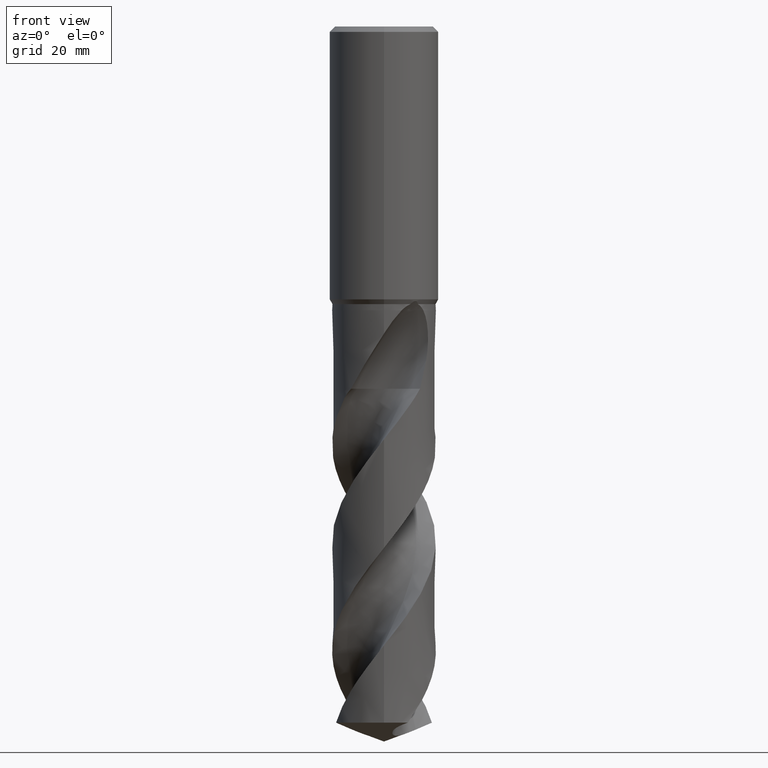
[diagram: clean part render]
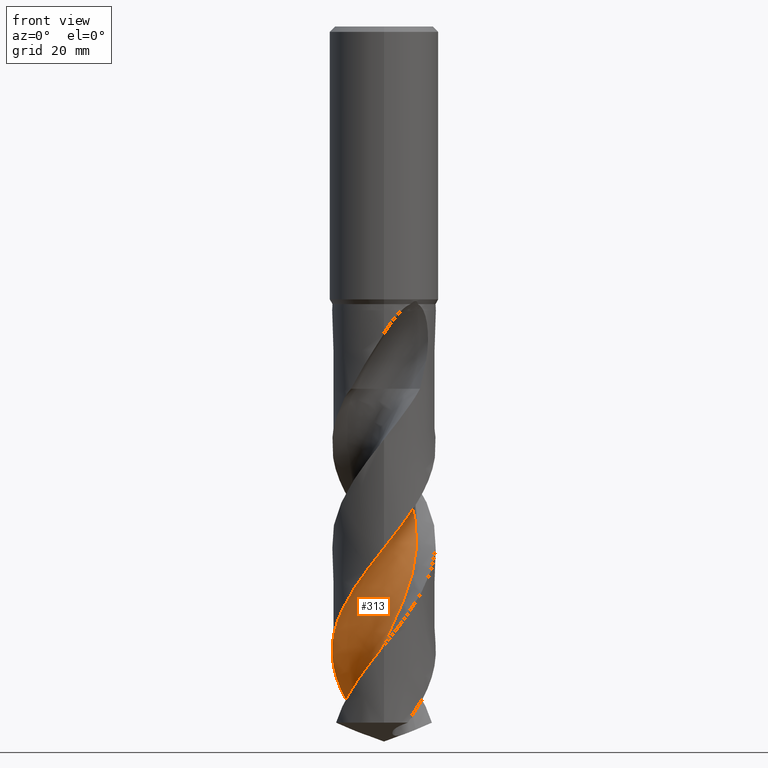
[diagram: same view with one face highlighted and labeled with its STEP entity id]
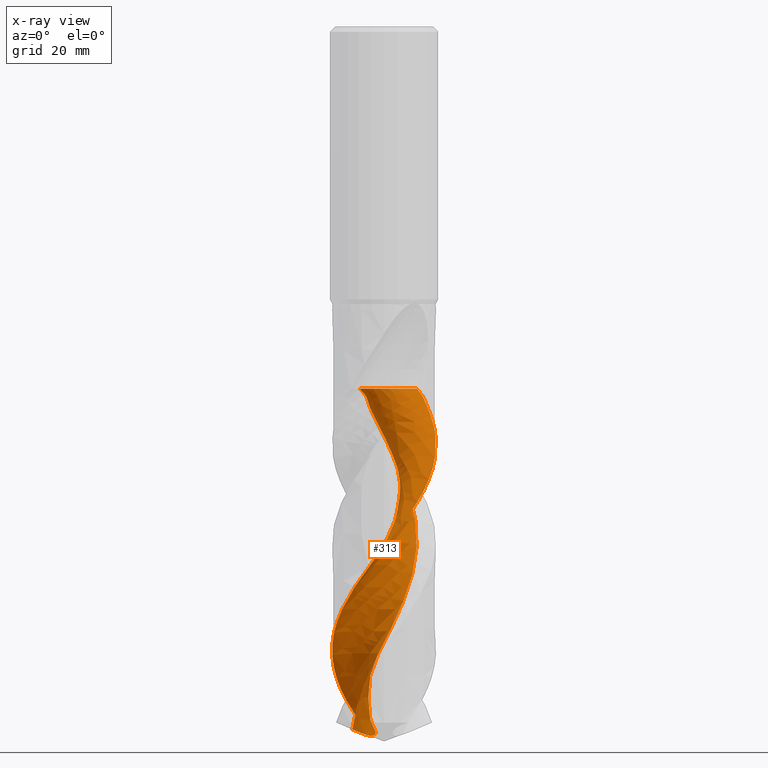
[diagram: x-ray of the same camera — body ghosted, the highlighted face saturated]
A machine part, front view. The second image highlights one B-rep face of the part: STEP entity #313.
The next image is the same camera in x-ray: the body ghosted, the highlighted face saturated — about 0% of this face is hidden behind the body in this view.
In plain terms, the highlighted face is a freeform B-spline surface patch.
Its self-contained STEP definition (entity closure, byte-faithful):
#293=EDGE_CURVE('',#703,#605,#803,.T.);
#313=ADVANCED_FACE('',(#826),#827,.F.);
#329=EDGE_CURVE('',#547,#703,#843,.T.);
#379=EDGE_CURVE('',#397,#407,#898,.T.);
#397=VERTEX_POINT('',#918);
#407=VERTEX_POINT('',#928);
#529=EDGE_CURVE('',#659,#397,#1063,.T.);
#547=VERTEX_POINT('',#1085);
#593=EDGE_CURVE('',#407,#547,#1135,.T.);
#605=VERTEX_POINT('',#1147);
#651=EDGE_CURVE('',#605,#659,#1197,.T.);
#659=VERTEX_POINT('',#1205);
#703=VERTEX_POINT('',#1250);
#803=CIRCLE('',#1363,6.33333333);
#826=FACE_OUTER_BOUND('',#1437,.T.);
#827=B_SPLINE_SURFACE_WITH_KNOTS('',3,3,((#1438,#1439,#1440,#1441,#1442,#1443,#1444,#1445,#1446,#1447,#1448,#1449,#1450,#1451,#1452,#1453,#1454,#1455,#1456,#1457,#1458,#1459,#1460,#1461,#1462,#1463,#1464,#1465,#1466,#1467,#1468,#1469,#1470,#1471,#1472,#1473,#1474,#1475,#1476,#1477,#1478,#1479,#1480,#1481,#1482,#1483,#1484,#1485,#1486,#1487,#1488,#1489,#1490,#1491,#1492,#1493,#1494,#1495,#1496,#1497,#1498),(#1499,#1500,#1501,#1502,#1503,#1504,#1505,#1506,#1507,#1508,#1509,#1510,#1511,#1512,#1513,#1514,#1515,#1516,#1517,#1518,#1519,#1520,#1521,#1522,#1523,#1524,#1525,#1526,#1527,#1528,#1529,#1530,#1531,#1532,#1533,#1534,#1535,#1536,#1537,#1538,#1539,#1540,#1541,#1542,#1543,#1544,#1545,#1546,#1547,#1548,#1549,#1550,#1551,#1552,#1553,#1554,#1555,#1556,#1557,#1558,#1559),(#1560,#1561,#1562,#1563,#1564,#1565,#1566,#1567,#1568,#1569,#1570,#1571,#1572,#1573,#1574,#1575,#1576,#1577,#1578,#1579,#1580,#1581,#1582,#1583,#1584,#1585,#1586,#1587,#1588,#1589,#1590,#1591,#1592,#1593,#1594,#1595,#1596,#1597,#1598,#1599,#1600,#1601,#1602,#1603,#1604,#1605,#1606,#1607,#1608,#1609,#1610,#1611,#1612,#1613,#1614,#1615,#1616,#1617,#1618,#1619,#1620),(#1621,#1622,#1623,#1624,#1625,#1626,#1627,#1628,#1629,#1630,#1631,#1632,#1633,#1634,#1635,#1636,#1637,#1638,#1639,#1640,#1641,#1642,#1643,#1644,#1645,#1646,#1647,#1648,#1649,#1650,#1651,#1652,#1653,#1654,#1655,#1656,#1657,#1658,#1659,#1660,#1661,#1662,#1663,#1664,#1665,#1666,#1667,#1668,#1669,#1670,#1671,#1672,#1673,#1674,#1675,#1676,#1677,#1678,#1679,#1680,#1681),(#1682,#1683,#1684,#1685,#1686,#1687,#1688,#1689,#1690,#1691,#1692,#1693,#1694,#1695,#1696,#1697,#1698,#1699,#1700,#1701,#1702,#1703,#1704,#1705,#1706,#1707,#1708,#1709,#1710,#1711,#1712,#1713,#1714,#1715,#1716,#1717,#1718,#1719,#1720,#1721,#1722,#1723,#1724,#1725,#1726,#1727,#1728,#1729,#1730,#1731,#1732,#1733,#1734,#1735,#1736,#1737,#1738,#1739,#1740,#1741,#1742),(#1743,#1744,#1745,#1746,#1747,#1748,#1749,#1750,#1751,#1752,#1753,#1754,#1755,#1756,#1757,#1758,#1759,#1760,#1761,#1762,#1763,#1764,#1765,#1766,#1767,#1768,#1769,#1770,#1771,#1772,#1773,#1774,#1775,#1776,#1777,#1778,#1779,#1780,#1781,#1782,#1783,#1784,#1785,#1786,#1787,#1788,#1789,#1790,#1791,#1792,#1793,#1794,#1795,#1796,#1797,#1798,#1799,#1800,#1801,#1802,#1803),(#1804,#1805,#1806,#1807,#1808,#1809,#1810,#1811,#1812,#1813,#1814,#1815,#1816,#1817,#1818,#1819,#1820,#1821,#1822,#1823,#1824,#1825,#1826,#1827,#1828,#1829,#1830,#1831,#1832,#1833,#1834,#1835,#1836,#1837,#1838,#1839,#1840,#1841,#1842,#1843,#1844,#1845,#1846,#1847,#1848,#1849,#1850,#1851,#1852,#1853,#1854,#1855,#1856,#1857,#1858,#1859,#1860,#1861,#1862,#1863,#1864),(#1865,#1866,#1867,#1868,#1869,#1870,#1871,#1872,#1873,#1874,#1875,#1876,#1877,#1878,#1879,#1880,#1881,#1882,#1883,#1884,#1885,#1886,#1887,#1888,#1889,#1890,#1891,#1892,#1893,#1894,#1895,#1896,#1897,#1898,#1899,#1900,#1901,#1902,#1903,#1904,#1905,#1906,#1907,#1908,#1909,#1910,#1911,#1912,#1913,#1914,#1915,#1916,#1917,#1918,#1919,#1920,#1921,#1922,#1923,#1924,#1925),(#1926,#1927,#1928,#1929,#1930,#1931,#1932,#1933,#1934,#1935,#1936,#1937,#1938,#1939,#1940,#1941,#1942,#1943,#1944,#1945,#1946,#1947,#1948,#1949,#1950,#1951,#1952,#1953,#1954,#1955,#1956,#1957,#1958,#1959,#1960,#1961,#1962,#1963,#1964,#1965,#1966,#1967,#1968,#1969,#1970,#1971,#1972,#1973,#1974,#1975,#1976,#1977,#1978,#1979,#1980,#1981,#1982,#1983,#1984,#1985,#1986),(#1987,#1988,#1989,#1990,#1991,#1992,#1993,#1994,#1995,#1996,#1997,#1998,#1999,#2000,#2001,#2002,#2003,#2004,#2005,#2006,#2007,#2008,#2009,#2010,#2011,#2012,#2013,#2014,#2015,#2016,#2017,#2018,#2019,#2020,#2021,#2022,#2023,#2024,#2025,#2026,#2027,#2028,#2029,#2030,#2031,#2032,#2033,#2034,#2035,#2036,#2037,#2038,#2039,#2040,#2041,#2042,#2043,#2044,#2045,#2046,#2047),(#2048,#2049,#2050,#2051,#2052,#2053,#2054,#2055,#2056,#2057,#2058,#2059,#2060,#2061,#2062,#2063,#2064,#2065,#2066,#2067,#2068,#2069,#2070,#2071,#2072,#2073,#2074,#2075,#2076,#2077,#2078,#2079,#2080,#2081,#2082,#2083,#2084,#2085,#2086,#2087,#2088,#2089,#2090,#2091,#2092,#2093,#2094,#2095,#2096,#2097,#2098,#2099,#2100,#2101,#2102,#2103,#2104,#2105,#2106,#2107,#2108),(#2109,#2110,#2111,#2112,#2113,#2114,#2115,#2116,#2117,#2118,#2119,#2120,#2121,#2122,#2123,#2124,#2125,#2126,#2127,#2128,#2129,#2130,#2131,#2132,#2133,#2134,#2135,#2136,#2137,#2138,#2139,#2140,#2141,#2142,#2143,#2144,#2145,#2146,#2147,#2148,#2149,#2150,#2151,#2152,#2153,#2154,#2155,#2156,#2157,#2158,#2159,#2160,#2161,#2162,#2163,#2164,#2165,#2166,#2167,#2168,#2169),(#2170,#2171,#2172,#2173,#2174,#2175,#2176,#2177,#2178,#2179,#2180,#2181,#2182,#2183,#2184,#2185,#2186,#2187,#2188,#2189,#2190,#2191,#2192,#2193,#2194,#2195,#2196,#2197,#2198,#2199,#2200,#2201,#2202,#2203,#2204,#2205,#2206,#2207,#2208,#2209,#2210,#2211,#2212,#2213,#2214,#2215,#2216,#2217,#2218,#2219,#2220,#2221,#2222,#2223,#2224,#2225,#2226,#2227,#2228,#2229,#2230),(#2231,#2232,#2233,#2234,#2235,#2236,#2237,#2238,#2239,#2240,#2241,#2242,#2243,#2244,#2245,#2246,#2247,#2248,#2249,#2250,#2251,#2252,#2253,#2254,#2255,#2256,#2257,#2258,#2259,#2260,#2261,#2262,#2263,#2264,#2265,#2266,#2267,#2268,#2269,#2270,#2271,#2272,#2273,#2274,#2275,#2276,#2277,#2278,#2279,#2280,#2281,#2282,#2283,#2284,#2285,#2286,#2287,#2288,#2289,#2290,#2291)),.UNSPECIFIED.,.F.,.F.,.F.,(4,1,1,1,1,1,1,1,1,1,1,4),(4,1,2,2,2,2,2,2,1,2,2,1,2,1,2,1,2,1,2,1,2,1,2,1,2,1,2,1,2,1,2,1,2,2,2,2,4),(-2.2516641665288E-016,0.294525364931647,0.589050729863295,0.883576094794943,1.17810145972659,1.47262682465824,1.76715218958989,2.06167755452153,2.35620291945318,2.65072828438483,2.94525364931648,3.14160389260424),(0.0,1.50514224946987,3.01028449893974,4.51542674840961,6.02056899787949,7.52571124734936,9.03085349681923,10.5359957462891,12.041137995759,15.0514224946987,18.0617069936385,21.0719914925782,24.0822759915179,27.0925604904577,30.1028449893974,33.1131294883372,36.1234139872769,39.1336984862167,42.1439829851564,45.1542674840962,48.1645519830359,51.1748364819756,54.1851209809154,57.1954054798551,60.2056899787949,63.2159744777346,66.2262589766744,69.2365434756141,72.2468279745538,75.2571124734936,78.2673969724333,81.2776814713731,84.2879659703128,87.2982504692526,90.3085349681923,93.318819467132,96.3291039660718),.UNSPECIFIED.);
#843=CIRCLE('',#2414,6.33333333);
#898=B_SPLINE_CURVE_WITH_KNOTS('',3,(#2506,#2507,#2508,#2509,#2510,#2511,#2512,#2513,#2514,#2515,#2516,#2517,#2518,#2519,#2520,#2521,#2522,#2523,#2524,#2525,#2526,#2527,#2528,#2529,#2530,#2531,#2532,#2533,#2534,#2535,#2536,#2537,#2538,#2539,#2540,#2541,#2542,#2543,#2544,#2545,#2546,#2547,#2548,#2549,#2550,#2551,#2552,#2553,#2554,#2555,#2556,#2557,#2558,#2559,#2560,#2561,#2562,#2563,#2564,#2565,#2566,#2567,#2568,#2569,#2570,#2571,#2572,#2573,#2574,#2575,#2576,#2577,#2578,#2579,#2580,#2581),.UNSPECIFIED.,.F.,.F.,(4,2,2,2,2,2,2,2,2,2,2,2,2,2,2,2,2,2,2,2,2,2,2,2,2,2,2,2,2,2,2,2,2,2,2,2,2,4),(0.0,2.25914382794848,7.05540213314211,10.0013620025224,11.5253119808895,15.6076413966644,17.1778170664988,20.150008110195,22.9904255456098,25.7622310089448,27.5633286447484,30.6550600490396,32.5073664853758,35.3741221962792,38.4894478065862,41.3894797799599,43.1024509994592,46.2297014957963,48.8296602367732,51.8557861740857,53.382475541873,56.1941078235527,56.8926950528538,58.3650637337148,62.6255429286548,63.0482380595942,66.5650620735292,68.9659712369194,69.4705231025515,70.6633072564733,74.075503221081,74.724813223672,76.2425961632874,76.7987441663649,77.143126899394,77.7137466620978,78.435062432694,79.0839071485579),.UNSPECIFIED.);
#918=CARTESIAN_POINT('',(-4.3629638526397,8.43887115795468,-127.542282774471));
#928=CARTESIAN_POINT('',(-5.63475832766119E-015,-9.49995761745559,-95.5255412277768));
#1063=B_SPLINE_CURVE_WITH_KNOTS('',3,(#4349,#4350,#4351,#4352,#4353,#4354,#4355,#4356,#4357,#4358,#4359,#4360,#4361,#4362,#4363,#4364,#4365,#4366,#4367,#4368,#4369,#4370),.UNSPECIFIED.,.F.,.F.,(4,2,2,2,2,2,2,2,2,2,4),(0.0,3.8287469873239,6.26554700210519,7.82093957371032,10.7916383714297,14.2281303636735,18.2106279664995,22.8372098876404,28.1681213263069,31.7465653663111,35.3310655129286),.UNSPECIFIED.);
#1085=CARTESIAN_POINT('',(6.05350196316577,7.32144626355211,-66.369));
#1135=B_SPLINE_CURVE_WITH_KNOTS('',3,(#4803,#4804,#4805,#4806,#4807,#4808,#4809,#4810,#4811,#4812,#4813,#4814,#4815,#4816,#4817,#4818,#4819,#4820,#4821,#4822,#4823,#4824,#4825,#4826,#4827,#4828,#4829,#4830,#4831,#4832,#4833,#4834,#4835,#4836,#4837,#4838,#4839,#4840,#4841,#4842,#4843,#4844,#4845,#4846,#4847,#4848,#4849,#4850,#4851,#4852,#4853,#4854,#4855,#4856,#4857,#4858,#4859,#4860,#4861,#4862,#4863,#4864,#4865,#4866,#4867,#4868,#4869,#4870,#4871,#4872,#4873,#4874,#4875,#4876,#4877,#4878),.UNSPECIFIED.,.F.,.F.,(4,2,2,2,2,2,2,2,2,2,2,2,2,2,2,2,2,2,2,2,2,2,2,2,2,2,2,2,2,2,2,2,2,2,2,2,2,4),(0.0,2.25914382794848,7.05540213314211,10.0013620025224,11.5253119808895,15.6076413966644,17.1778170664988,20.150008110195,22.9904255456098,25.7622310089448,27.5633286447484,30.6550600490396,32.5073664853758,35.3741221962792,38.4894478065862,41.3894797799599,43.1024509994592,46.2297014957963,48.8296602367732,51.8557861740857,53.382475541873,56.1941078235527,56.8926950528538,58.3650637337148,62.6255429286548,63.0482380595942,66.5650620735292,68.9659712369194,69.4705231025515,70.6633072564733,74.075503221081,74.724813223672,76.2425961632874,76.7987441663649,77.143126899394,77.7137466620978,78.435062432694,79.0839071485579),.UNSPECIFIED.);
#1147=CARTESIAN_POINT('',(-4.47834294508706,4.70499038491293,-66.369));
#1197=B_SPLINE_CURVE_WITH_KNOTS('',3,(#5200,#5201,#5202,#5203,#5204,#5205,#5206,#5207,#5208,#5209,#5210,#5211,#5212,#5213,#5214,#5215,#5216,#5217,#5218,#5219,#5220,#5221,#5222,#5223,#5224,#5225,#5226,#5227,#5228,#5229,#5230,#5231,#5232,#5233,#5234,#5235,#5236,#5237,#5238,#5239,#5240,#5241,#5242,#5243,#5244,#5245,#5246,#5247,#5248,#5249,#5250,#5251,#5252,#5253,#5254,#5255,#5256,#5257,#5258,#5259,#5260),.UNSPECIFIED.,.F.,.F.,(4,1,2,2,2,2,2,2,1,2,2,1,2,1,2,1,2,1,2,1,2,1,2,1,2,1,2,1,2,1,2,1,2,2,2,2,4),(0.0,1.50514224946987,3.01028449893974,4.51542674840961,6.02056899787949,7.52571124734936,9.03085349681923,10.5359957462891,12.041137995759,15.0514224946987,18.0617069936385,21.0719914925782,24.0822759915179,27.0925604904577,30.1028449893974,33.1131294883372,36.1234139872769,39.1336984862167,42.1439829851564,45.1542674840962,48.1645519830359,51.1748364819756,54.1851209809154,57.1954054798551,60.2056899787949,63.2159744777346,66.2262589766744,69.2365434756141,72.2468279745538,75.2571124734936,78.2673969724333,81.2776814713731,84.2879659703128,87.2982504692526,90.3085349681923,93.318819467132,96.3291039660718),.UNSPECIFIED.);
#1205=CARTESIAN_POINT('',(-5.80974201715728,-1.44728957553705,-128.820801377127));
#1250=CARTESIAN_POINT('',(-0.682532319369162,2.88686263108545,-66.369));
#1363=AXIS2_PLACEMENT_3D('',#5674,#5675,#5676);
#1437=EDGE_LOOP('',(#5707,#5708,#5709,#5710,#5711,#5712));
#1438=CARTESIAN_POINT('',(4.47834294508707,13.6616762750871,-66.369));
#1439=CARTESIAN_POINT('',(4.85005208753505,13.6432196532811,-66.7051351514393));
#1440=CARTESIAN_POINT('',(5.60130651527558,13.535461107554,-67.3820950264643));
#1441=CARTESIAN_POINT('',(6.351894192586,13.2480494414403,-68.0622872791644));
#1442=CARTESIAN_POINT('',(7.083277107984,12.8521715947545,-68.7357590669287));
#1443=CARTESIAN_POINT('',(7.43927782974913,12.631517732017,-69.0711400726661));
#1444=CARTESIAN_POINT('',(8.12703257837963,12.1451995411867,-69.738184481689));
#1445=CARTESIAN_POINT('',(8.46099727540389,11.8982921844978,-70.072229897337));
#1446=CARTESIAN_POINT('',(9.11341423974001,11.4014140708246,-70.7447938956402));
#1447=CARTESIAN_POINT('',(9.43020280705742,11.1437273237911,-71.0818309605911));
#1448=CARTESIAN_POINT('',(10.0442423467943,10.6116921924379,-71.7584675144874));
#1449=CARTESIAN_POINT('',(10.3395961583045,10.3309415335948,-72.0964259049623));
#1450=CARTESIAN_POINT('',(10.9034226441133,9.74048005145493,-72.7709119086183));
#1451=CARTESIAN_POINT('',(11.1722386384024,9.4316646388476,-73.107698689153));
#1452=CARTESIAN_POINT('',(11.6805760983243,8.78797498647861,-73.7798133017805));
#1453=CARTESIAN_POINT('',(12.4033768175491,7.79217197902136,-74.7885066080298));
#1454=CARTESIAN_POINT('',(13.0002114315427,6.71480384729324,-75.7983499944393));
#1455=CARTESIAN_POINT('',(13.6697417936052,5.2211302040099,-77.1458054338062));
#1456=CARTESIAN_POINT('',(13.9420835747897,4.44656939964418,-77.8194290416852));
#1457=CARTESIAN_POINT('',(14.3480210590205,2.85898099617426,-79.1658563859893));
#1458=CARTESIAN_POINT('',(14.6251446916245,1.24121644045261,-80.5119656499974));
#1459=CARTESIAN_POINT('',(14.6296264542084,-0.400916271592957,-81.8590936794032));
#1460=CARTESIAN_POINT('',(14.4885068025361,-2.03404117010593,-83.205768326607));
#1461=CARTESIAN_POINT('',(14.2157397171752,-3.65285353290686,-84.5519684864513));
#1462=CARTESIAN_POINT('',(13.6780626460761,-5.20442911996072,-85.8990486730404));
#1463=CARTESIAN_POINT('',(13.0063917278083,-6.69953376796489,-87.2456993153245));
#1464=CARTESIAN_POINT('',(12.2151404128259,-8.13777910453789,-88.5919059723517));
#1465=CARTESIAN_POINT('',(11.1957993638377,-9.42518628251398,-89.9389944372684));
#1466=CARTESIAN_POINT('',(10.0684668753854,-10.6150333674648,-91.2856261922504));
#1467=CARTESIAN_POINT('',(8.84700575049883,-11.7117501862612,-92.6318177974449));
#1468=CARTESIAN_POINT('',(7.45998992535234,-12.5908187384319,-93.9789090296063));
#1469=CARTESIAN_POINT('',(6.00321703536537,-13.3421502068819,-95.3255552402292));
#1470=CARTESIAN_POINT('',(4.48832521369409,-13.9745078942129,-96.6717528116698));
#1471=CARTESIAN_POINT('',(2.88898455878211,-14.3468256596686,-98.0188446683509));
#1472=CARTESIAN_POINT('',(1.26594437001843,-14.5755842983307,-99.3654951963444));
#1473=CARTESIAN_POINT('',(-0.372722530215925,-14.6728610268881,-100.711696521924));
#1474=CARTESIAN_POINT('',(-2.00534664848818,-14.4967947586493,-102.058784636848));
#1475=CARTESIAN_POINT('',(-3.61299743965374,-14.1773865147892,-103.405425587257));
#1476=CARTESIAN_POINT('',(-5.19204060420791,-13.7286915533495,-104.751622661359));
#1477=CARTESIAN_POINT('',(-6.67521405311222,-13.0238987859855,-106.098707431926));
#1478=CARTESIAN_POINT('',(-8.08751605177312,-12.1919927800228,-107.445340128182));
#1479=CARTESIAN_POINT('',(-9.43015575015617,-11.2474789687361,-108.791534599071));
#1480=CARTESIAN_POINT('',(-10.5977961316612,-10.0928426964106,-110.138639853579));
#1481=CARTESIAN_POINT('',(-11.6565855910344,-8.84159482712693,-111.485308759309));
#1482=CARTESIAN_POINT('',(-12.6124596739355,-7.50705433110498,-112.831508656956));
#1483=CARTESIAN_POINT('',(-13.3339181114121,-6.03196818167656,-114.178560889975));
#1484=CARTESIAN_POINT('',(-13.9208589494752,-4.50162116375624,-115.525152666536));
#1485=CARTESIAN_POINT('',(-14.383134827847,-2.92647175791752,-116.871352296896));
#1486=CARTESIAN_POINT('',(-14.5773393018918,-1.29577306348212,-118.218534039071));
#1487=CARTESIAN_POINT('',(-14.6259834918932,0.342748646059588,-119.565303180465));
#1488=CARTESIAN_POINT('',(-14.5425082986985,1.98211018246139,-120.911501038709));
#1489=CARTESIAN_POINT('',(-14.1892262060958,3.58528344601977,-122.258407847581));
#1490=CARTESIAN_POINT('',(-13.6969950796739,5.14801301689509,-123.604810967154));
#1491=CARTESIAN_POINT('',(-13.3868925302261,5.90834303705872,-124.277972789014));
#1492=CARTESIAN_POINT('',(-12.6413008806572,7.36684296719874,-125.625097248567));
#1493=CARTESIAN_POINT('',(-12.2097404331426,8.06517554670439,-126.298725224737));
#1494=CARTESIAN_POINT('',(-11.2335888256324,9.37870385120846,-127.644792388797));
#1495=CARTESIAN_POINT('',(-10.6900180696056,9.99403504680646,-128.317707255779));
#1496=CARTESIAN_POINT('',(-9.49985794587726,11.120757089902,-129.66353060982));
#1497=CARTESIAN_POINT('',(-8.86596364103082,11.6370032715084,-130.335551071577));
#1498=CARTESIAN_POINT('',(-8.20039814116789,12.103295229654,-131.008548184965));
#1499=CARTESIAN_POINT('',(4.91798529546476,13.2219948998912,-66.3689999999996));
#1500=CARTESIAN_POINT('',(5.28995880255177,13.2038026121007,-66.7051423567304));
#1501=CARTESIAN_POINT('',(6.03480472598797,13.0894672360514,-67.3824927800909));
#1502=CARTESIAN_POINT('',(6.76400095529928,12.7820440737097,-68.0633391353191));
#1503=CARTESIAN_POINT('',(7.4650248058502,12.3609877798948,-68.7368038534106));
#1504=CARTESIAN_POINT('',(7.80467622162033,12.1279956469627,-69.0720597546518));
#1505=CARTESIAN_POINT('',(8.4574233768084,11.6180439774952,-69.7384559324277));
#1506=CARTESIAN_POINT('',(8.77490424664295,11.3612891279796,-70.0722265047178));
#1507=CARTESIAN_POINT('',(9.39669881831997,10.8476455302878,-70.7447098667532));
#1508=CARTESIAN_POINT('',(9.69838542196752,10.5825240624458,-71.081786738682));
#1509=CARTESIAN_POINT('',(10.2826453475378,10.0372056284031,-71.758769225317));
#1510=CARTESIAN_POINT('',(10.562475698746,9.7502321492305,-72.0968626912582));
#1511=CARTESIAN_POINT('',(11.0939762632425,9.14837552700854,-72.7714699205534));
#1512=CARTESIAN_POINT('',(11.3461141392899,8.83443170954996,-73.1082698622893));
#1513=CARTESIAN_POINT('',(11.8201003566406,8.18179610373959,-73.7802586644899));
#1514=CARTESIAN_POINT('',(12.4911891187171,7.17488401856707,-74.7888175396862));
#1515=CARTESIAN_POINT('',(13.0360347499393,6.09308809405101,-75.7986463922137));
#1516=CARTESIAN_POINT('',(13.6360337952212,4.59929640123153,-77.1461864576638));
#1517=CARTESIAN_POINT('',(13.8736567116048,3.82757356262493,-77.8198415309166));
#1518=CARTESIAN_POINT('',(14.210336881373,2.25162532289632,-79.1662462662672));
#1519=CARTESIAN_POINT('',(14.4201455861414,0.651162012732604,-80.5122998564173));
#1520=CARTESIAN_POINT('',(14.3610146813099,-0.96278004832117,-81.8594783525295));
#1521=CARTESIAN_POINT('',(14.1582205692067,-2.56201270801812,-83.2061562195843));
#1522=CARTESIAN_POINT('',(13.8275259863997,-4.14222555611125,-84.5523101217413));
#1523=CARTESIAN_POINT('',(13.2391015368215,-5.64619217296472,-85.8994358643555));
#1524=CARTESIAN_POINT('',(12.5204243292144,-7.08899095441768,-87.2460871366103));
#1525=CARTESIAN_POINT('',(11.6872400602161,-8.47171672769044,-88.5922482974832));
#1526=CARTESIAN_POINT('',(10.6356933877268,-9.69744211092896,-89.9393831014933));
#1527=CARTESIAN_POINT('',(9.48123284988163,-10.8223927495768,-91.2860135965336));
#1528=CARTESIAN_POINT('',(8.23849671189008,-11.8528552780223,-92.6321580705471));
#1529=CARTESIAN_POINT('',(6.84142498176823,-12.6630651305669,-93.9792959754083));
#1530=CARTESIAN_POINT('',(5.38045081623504,-13.3441788240087,-95.3259423960215));
#1531=CARTESIAN_POINT('',(3.86733206013796,-13.9069704182336,-96.67209352347));
#1532=CARTESIAN_POINT('',(2.28121366179898,-14.2109714013318,-98.0192319810516));
#1533=CARTESIAN_POINT('',(0.677368675845705,-14.3720646268511,-99.3658833490063));
#1534=CARTESIAN_POINT('',(-0.936678741445268,-14.4042595009587,-100.712038483519));
#1535=CARTESIAN_POINT('',(-2.53428697394566,-14.1680640207103,-102.059172918511));
#1536=CARTESIAN_POINT('',(-4.10149790684822,-13.791110915283,-103.405813588934));
#1537=CARTESIAN_POINT('',(-5.63583186384404,-13.2890974897444,-104.751964024387));
#1538=CARTESIAN_POINT('',(-7.06611114417741,-12.5390879609355,-106.099094821402));
#1539=CARTESIAN_POINT('',(-8.42124815368897,-11.6661937070917,-107.44572639771));
#1540=CARTESIAN_POINT('',(-9.70408816672321,-10.6860922869162,-108.791874214825));
#1541=CARTESIAN_POINT('',(-10.8068770216269,-9.506219057197,-110.139027574524));
#1542=CARTESIAN_POINT('',(-11.7981781596606,-8.23513508601655,-111.48569872015));
#1543=CARTESIAN_POINT('',(-12.6858618273219,-6.88672757019587,-112.831851800797));
#1544=CARTESIAN_POINT('',(-13.3377890098966,-5.40921117730183,-114.178946860912));
#1545=CARTESIAN_POINT('',(-13.8544996835249,-3.88239787582535,-115.525534297673));
#1546=CARTESIAN_POINT('',(-14.2478305347815,-2.31664547692339,-116.87168992358));
#1547=CARTESIAN_POINT('',(-14.375547722724,-0.706600746820035,-118.218927341726));
#1548=CARTESIAN_POINT('',(-14.3589922054586,0.905384657190247,-119.565705302712));
#1549=CARTESIAN_POINT('',(-14.2135446361742,2.51311746435935,-120.911848917787));
#1550=CARTESIAN_POINT('',(-13.8044548134064,4.07496294106497,-122.258784824541));
#1551=CARTESIAN_POINT('',(-13.2596000876394,5.59131922080303,-123.605177724587));
#1552=CARTESIAN_POINT('',(-12.9253546396087,6.32644443291801,-124.278336858966));
#1553=CARTESIAN_POINT('',(-12.1358254986628,7.73060166078066,-125.625483437495));
#1554=CARTESIAN_POINT('',(-11.6848046365591,8.40022357470956,-126.299100993155));
#1555=CARTESIAN_POINT('',(-10.6745615269558,9.65311781562853,-127.645137498633));
#1556=CARTESIAN_POINT('',(-10.1164361814136,10.2366436299886,-128.318081400767));
#1557=CARTESIAN_POINT('',(-8.90247183945067,11.296781709887,-129.663949272748));
#1558=CARTESIAN_POINT('',(-8.25995396691284,11.7800217962502,-130.335892768441));
#1559=CARTESIAN_POINT('',(-7.58850600931629,12.2137171031141,-131.008918020527));
#1560=CARTESIAN_POINT('',(5.66683967387788,12.2123271227608,-66.3690000000002));
#1561=CARTESIAN_POINT('',(6.0394202355868,12.1945850868554,-66.7051548515613));
#1562=CARTESIAN_POINT('',(6.76949983950728,12.0689971794183,-67.3831829815234));
#1563=CARTESIAN_POINT('',(7.44998244601901,11.7278961176385,-68.0651643538287));
#1564=CARTESIAN_POINT('',(8.08282621378766,11.2654882025648,-68.7386168067583));
#1565=CARTESIAN_POINT('',(8.38612252214087,11.0126691111426,-69.0736556264024));
#1566=CARTESIAN_POINT('',(8.96185108611272,10.4658341930559,-69.7389269582415));
#1567=CARTESIAN_POINT('',(9.24344650718975,10.1942733821302,-70.072220599602));
#1568=CARTESIAN_POINT('',(9.79902895839421,9.65618107910369,-70.7445640748322));
#1569=CARTESIAN_POINT('',(10.0683090483834,9.38066916979861,-71.0817100025593));
#1570=CARTESIAN_POINT('',(10.5890749098904,8.8176159593507,-71.7592927657387));
#1571=CARTESIAN_POINT('',(10.8360151589882,8.52280058884641,-72.0976206264613));
#1572=CARTESIAN_POINT('',(11.2994892094967,7.90774035146065,-72.7724381960415));
#1573=CARTESIAN_POINT('',(11.5167523328418,7.58848574044938,-73.1092609703595));
#1574=CARTESIAN_POINT('',(11.9193878595611,6.92814518375984,-73.7810314870229));
#1575=CARTESIAN_POINT('',(12.4837653573127,5.91434997530899,-74.7893570641671));
#1576=CARTESIAN_POINT('',(12.9233267473711,4.83911467665319,-75.7991607243973));
#1577=CARTESIAN_POINT('',(13.3842372670865,3.36570420817606,-77.1468476125564));
#1578=CARTESIAN_POINT('',(13.5532683831041,2.60995167604381,-77.8205572221465));
#1579=CARTESIAN_POINT('',(13.7548943914456,1.07781830531552,-79.1669228762856));
#1580=CARTESIAN_POINT('',(13.8352120472633,-0.468084615978976,-80.5128797518152));
#1581=CARTESIAN_POINT('',(13.6572231599392,-2.00678679274522,-81.8601458401071));
#1582=CARTESIAN_POINT('',(13.3411376210238,-3.51995168005759,-83.2068293172821));
#1583=CARTESIAN_POINT('',(12.9060410984838,-5.00579398762536,-84.5529030102086));
#1584=CARTESIAN_POINT('',(12.2302453148735,-6.399501299798,-85.9001075810248));
#1585=CARTESIAN_POINT('',(11.4330712504662,-7.72375688322359,-87.2467602504582));
#1586=CARTESIAN_POINT('',(10.532489052594,-8.98301680304515,-88.5928422446698));
#1587=CARTESIAN_POINT('',(9.43482503902968,-10.0758370979803,-89.9400575101199));
#1588=CARTESIAN_POINT('',(8.24535489265928,-11.0629591733333,-91.2866858506835));
#1589=CARTESIAN_POINT('',(6.97971706915944,-11.9546133017901,-92.6327485600126));
#1590=CARTESIAN_POINT('',(5.58295268178892,-12.624132960572,-93.9799673321522));
#1591=CARTESIAN_POINT('',(4.13439732482744,-13.1635743070309,-95.3266142889875));
#1592=CARTESIAN_POINT('',(2.64545211443187,-13.587768529535,-96.6726845981378));
#1593=CARTESIAN_POINT('',(1.10603363011171,-13.7590654191077,-98.0199042565858));
#1594=CARTESIAN_POINT('',(-0.439359373903886,-13.7905282369263,-99.3665566896578));
#1595=CARTESIAN_POINT('',(-1.98487306502731,-13.6998679979539,-100.712631933839));
#1596=CARTESIAN_POINT('',(-3.49462469876748,-13.3538046297019,-102.059846743568));
#1597=CARTESIAN_POINT('',(-4.96389799390519,-12.8737604611929,-103.406486799457));
#1598=CARTESIAN_POINT('',(-6.39300947683472,-12.2783740191026,-104.752556453475));
#1599=CARTESIAN_POINT('',(-7.70409961053453,-11.4536209581077,-106.099766931653));
#1600=CARTESIAN_POINT('',(-8.93276034489044,-10.5157058720526,-107.446396769186));
#1601=CARTESIAN_POINT('',(-10.0854563270512,-9.48216561326924,-108.792463527037));
#1602=CARTESIAN_POINT('',(-11.0510672006732,-8.27105129649174,-110.139700263149));
#1603=CARTESIAN_POINT('',(-11.9015188126629,-6.98030925220742,-111.486375493693));
#1604=CARTESIAN_POINT('',(-12.6487184955391,-5.62438915413319,-112.832447287754));
#1605=CARTESIAN_POINT('',(-13.1608716608873,-4.16262984146137,-114.179616410781));
#1606=CARTESIAN_POINT('',(-13.5381787875597,-2.66370805811552,-115.52619671928));
#1607=CARTESIAN_POINT('',(-13.7964149662207,-1.1371919118968,-116.872275764151));
#1608=CARTESIAN_POINT('',(-13.7972903970626,0.411832934431523,-118.219609657406));
#1609=CARTESIAN_POINT('',(-13.6582124068942,1.95141620567807,-119.566403237742));
#1610=CARTESIAN_POINT('',(-13.3982065556366,3.477519750447,-120.912452525763));
#1611=CARTESIAN_POINT('',(-12.889762980352,4.94016697153324,-122.25943890067));
#1612=CARTESIAN_POINT('',(-12.2534182974795,6.34817883244979,-123.605814203868));
#1613=CARTESIAN_POINT('',(-11.8783639121244,7.02573890445805,-124.278968840996));
#1614=CARTESIAN_POINT('',(-11.0170790171772,8.30818942648216,-125.626153332428));
#1615=CARTESIAN_POINT('',(-10.5356531316782,8.9146234347593,-126.299753236376));
#1616=CARTESIAN_POINT('',(-9.47521044910367,10.0361485407074,-127.645736150031));
#1617=CARTESIAN_POINT('',(-8.89740870185846,10.5517520836234,-128.318730598527));
#1618=CARTESIAN_POINT('',(-7.65558234146737,11.4716724075734,-129.664675784603));
#1619=CARTESIAN_POINT('',(-7.0056053734452,11.8863476118919,-130.336485292938));
#1620=CARTESIAN_POINT('',(-6.33205874561167,12.2531095126942,-131.00955977287));
#1621=CARTESIAN_POINT('',(6.30210765543352,10.4369025226395,-66.369));
#1622=CARTESIAN_POINT('',(6.67575569224627,10.4195424422454,-66.7051662656394));
#1623=CARTESIAN_POINT('',(7.37973882792651,10.2842324397654,-67.383813220967));
#1624=CARTESIAN_POINT('',(7.97563113220917,9.91600037543153,-68.0668310119082));
#1625=CARTESIAN_POINT('',(8.49259870329356,9.42392423320755,-68.7402722641717));
#1626=CARTESIAN_POINT('',(8.73507489104832,9.15847621652741,-69.0751128563089));
#1627=CARTESIAN_POINT('',(9.18418537551256,8.59223690199618,-69.7393570697491));
#1628=CARTESIAN_POINT('',(9.40782165201373,8.31504967734458,-70.0722152196267));
#1629=CARTESIAN_POINT('',(9.85771353211651,7.77069549641301,-70.7444309360465));
#1630=CARTESIAN_POINT('',(10.0759510791853,7.49438051624531,-71.0816399350144));
#1631=CARTESIAN_POINT('',(10.4978516811508,6.93351926213069,-71.7597708226652));
#1632=CARTESIAN_POINT('',(10.6941651109419,6.64176953252543,-72.0983127112244));
#1633=CARTESIAN_POINT('',(11.0542409679356,6.03737911876954,-72.7733223620706));
#1634=CARTESIAN_POINT('',(11.2191305372026,5.72568780237209,-73.1101659909008));
#1635=CARTESIAN_POINT('',(11.5159905421388,5.08535797435889,-73.7817371603726));
#1636=CARTESIAN_POINT('',(11.9241921585003,4.10815140055154,-74.7898497289586));
#1637=CARTESIAN_POINT('',(12.2154804612265,3.08818101334236,-75.7996303844222));
#1638=CARTESIAN_POINT('',(12.4856117644165,1.70459465428634,-77.147451322338));
#1639=CARTESIAN_POINT('',(12.5631374441104,1.00163588459169,-77.8212107719114));
#1640=CARTESIAN_POINT('',(12.5899799691081,-0.408792324118595,-79.1675406753577));
#1641=CARTESIAN_POINT('',(12.5081790296215,-1.81998794015002,-80.5134092825115));
#1642=CARTESIAN_POINT('',(12.1923398037247,-3.19892882026916,-81.860755349492));
#1643=CARTESIAN_POINT('',(11.7511097606272,-4.53921364922021,-83.2074439334474));
#1644=CARTESIAN_POINT('',(11.2072445460669,-5.84412858759012,-84.5534443530167));
#1645=CARTESIAN_POINT('',(10.4540456516013,-7.04151738487074,-85.9007210322582));
#1646=CARTESIAN_POINT('',(9.59581465645223,-8.1614278107244,-87.2473748012294));
#1647=CARTESIAN_POINT('',(8.65225114409984,-9.214109532171,-88.5933846299013));
#1648=CARTESIAN_POINT('',(7.54626337918543,-10.0960689854543,-89.9406733482255));
#1649=CARTESIAN_POINT('',(6.36655806558976,-10.8700999548647,-91.2872996876633));
#1650=CARTESIAN_POINT('',(5.12849212649875,-11.5525289116848,-92.633287715783));
#1651=CARTESIAN_POINT('',(3.79343432049544,-12.0202288495441,-93.9805804565442));
#1652=CARTESIAN_POINT('',(2.42439869177139,-12.3617149321715,-95.327227723124));
#1653=CARTESIAN_POINT('',(1.0305075022189,-12.5974864134409,-96.6732244166486));
#1654=CARTESIAN_POINT('',(-0.38408789307116,-12.5986295626834,-98.0205180362104));
#1655=CARTESIAN_POINT('',(-1.78912678523001,-12.4694683737654,-99.3671716294412));
#1656=CARTESIAN_POINT('',(-3.18276487953732,-12.2322998857419,-100.713173812665));
#1657=CARTESIAN_POINT('',(-4.51855945668979,-11.7667852864218,-102.060461972307));
#1658=CARTESIAN_POINT('',(-5.80235596295841,-11.1814073806759,-103.407101586203));
#1659=CARTESIAN_POINT('',(-7.03976540591413,-10.4978094975064,-104.753097331189));
#1660=CARTESIAN_POINT('',(-8.14721765658871,-9.61766842079911,-106.100380765931));
#1661=CARTESIAN_POINT('',(-9.16601400033701,-8.64149513868192,-107.44700879216));
#1662=CARTESIAN_POINT('',(-10.1086242627389,-7.58791919457759,-108.793001674739));
#1663=CARTESIAN_POINT('',(-10.8637189697499,-6.39169593436982,-110.140314564787));
#1664=CARTESIAN_POINT('',(-11.5034278971445,-5.13407054575024,-111.486993423359));
#1665=CARTESIAN_POINT('',(-12.0456987182907,-3.82854225491106,-112.832991013493));
#1666=CARTESIAN_POINT('',(-12.364075061797,-2.45026790860569,-114.18022790609));
#1667=CARTESIAN_POINT('',(-12.5534214377688,-1.05208808302378,-115.526801484035));
#1668=CARTESIAN_POINT('',(-12.6348220905761,0.359277560859434,-116.872810713736));
#1669=CARTESIAN_POINT('',(-12.4801947352308,1.76547658400521,-118.220232804836));
#1670=CARTESIAN_POINT('',(-12.1967705061423,3.1477763014462,-119.567040435466));
#1671=CARTESIAN_POINT('',(-11.8078688256969,4.50681921841718,-120.913003758419));
#1672=CARTESIAN_POINT('',(-11.2000052347884,5.78380756458976,-122.26003613874));
#1673=CARTESIAN_POINT('',(-10.4795115793361,6.99645605568607,-123.606395407692));
#1674=CARTESIAN_POINT('',(-10.0709455532217,7.57361350578123,-124.279545794091));
#1675=CARTESIAN_POINT('',(-9.15965785037939,8.65011340578679,-125.626765159248));
#1676=CARTESIAN_POINT('',(-8.66210312748993,9.15260408720125,-126.300348680966));
#1677=CARTESIAN_POINT('',(-7.58680811084007,10.0636955607681,-127.646282931962));
#1678=CARTESIAN_POINT('',(-7.01033955066653,10.4732317986076,-128.319323440652));
#1679=CARTESIAN_POINT('',(-5.78957837514917,11.1797439471309,-129.66533914104));
#1680=CARTESIAN_POINT('',(-5.15875184760005,11.4927495668869,-130.337026487117));
#1681=CARTESIAN_POINT('',(-4.51133973579397,11.7625181725826,-131.010145774722));
#1682=CARTESIAN_POINT('',(6.3946406695042,8.55351845123771,-66.369));
#1683=CARTESIAN_POINT('',(6.76942108844922,8.53621400139757,-66.7051693607716));
#1684=CARTESIAN_POINT('',(7.44560917119585,8.39917607002099,-67.3839841110936));
#1685=CARTESIAN_POINT('',(7.95267921112379,8.02953582803249,-68.0672829334764));
#1686=CARTESIAN_POINT('',(8.35014791805716,7.54270609628972,-68.7407211442106));
#1687=CARTESIAN_POINT('',(8.53075648733549,7.28282837061098,-69.0755079877227));
#1688=CARTESIAN_POINT('',(8.85306744039131,6.73477621191115,-69.7394736966362));
#1689=CARTESIAN_POINT('',(9.01960706541824,6.46902953890426,-70.0722137558456));
#1690=CARTESIAN_POINT('',(9.36654167964164,5.94936357024833,-70.7443948400488));
#1691=CARTESIAN_POINT('',(9.53570143229234,5.68709705372235,-71.081620935742));
#1692=CARTESIAN_POINT('',(9.86363026635689,5.15703244889275,-71.7599004494861));
#1693=CARTESIAN_POINT('',(10.0123868814031,4.88291247871355,-72.0985003722276));
#1694=CARTESIAN_POINT('',(10.2766142556719,4.31874732147516,-72.7735621062096));
#1695=CARTESIAN_POINT('',(10.3935809625698,4.02949689362474,-73.1104113880356));
#1696=CARTESIAN_POINT('',(10.5950289026555,3.43902138663959,-73.7819285077305));
#1697=CARTESIAN_POINT('',(10.864400599089,2.54216366229389,-74.7899833092458));
#1698=CARTESIAN_POINT('',(11.029843078599,1.61812004455011,-75.799757755543));
#1699=CARTESIAN_POINT('',(11.1434847756017,0.375870373336139,-77.1476149986706));
#1700=CARTESIAN_POINT('',(11.1487704942443,-0.250005242605784,-77.8213879791086));
#1701=CARTESIAN_POINT('',(11.0436849746527,-1.49323176252865,-79.1677081982205));
#1702=CARTESIAN_POINT('',(10.8458498319907,-2.72845979593056,-80.5135528559391));
#1703=CARTESIAN_POINT('',(10.4444724755961,-3.91450276519368,-81.860920635832));
#1704=CARTESIAN_POINT('',(9.93367126688505,-5.05302408795144,-83.2076105724324));
#1705=CARTESIAN_POINT('',(9.33824153109572,-6.15322834157261,-84.5535911437521));
#1706=CARTESIAN_POINT('',(8.5679609269894,-7.14028311221222,-85.9008873794292));
#1707=CARTESIAN_POINT('',(7.71062057104679,-8.04692351187569,-87.2475414304992));
#1708=CARTESIAN_POINT('',(6.78589322208552,-8.88944538129786,-88.5935317184278));
#1709=CARTESIAN_POINT('',(5.73314995563692,-9.56720740762499,-89.9408403043253));
#1710=CARTESIAN_POINT('',(4.62464630237871,-10.1401575420961,-91.2874661616648));
#1711=CARTESIAN_POINT('',(3.47370009009556,-10.6303742374896,-92.6334339015485));
#1712=CARTESIAN_POINT('',(2.25627711009347,-10.9228573526921,-93.9807466927004));
#1713=CARTESIAN_POINT('',(1.02080066955125,-11.097995531239,-95.3273940720021));
#1714=CARTESIAN_POINT('',(-0.227433066481537,-11.1810505500901,-96.673370782941));
#1715=CARTESIAN_POINT('',(-1.47318709760385,-11.0556011034655,-98.0206844642667));
#1716=CARTESIAN_POINT('',(-2.69728867826769,-10.813475158545,-99.3673383723488));
#1717=CARTESIAN_POINT('',(-3.90306163985273,-10.4801943594311,-100.713320739888));
#1718=CARTESIAN_POINT('',(-5.03771480165958,-9.95086927200537,-102.060628802985));
#1719=CARTESIAN_POINT('',(-6.11344426539558,-9.3185345929028,-103.407268277922));
#1720=CARTESIAN_POINT('',(-7.14179979744534,-8.60617197380301,-104.753244018879));
#1721=CARTESIAN_POINT('',(-8.03830444474744,-7.7321409955709,-106.100547164363));
#1722=CARTESIAN_POINT('',(-8.84516738957107,-6.78027756847703,-107.447174788597));
#1723=CARTESIAN_POINT('',(-9.58092206963958,-5.768513538202,-108.793147617305));
#1724=CARTESIAN_POINT('',(-10.1388880807075,-4.64764991268228,-110.140481045552));
#1725=CARTESIAN_POINT('',(-10.5865422252577,-3.48289075781378,-111.487161065815));
#1726=CARTESIAN_POINT('',(-10.9473363485558,-2.28507235811811,-112.83313839234));
#1727=CARTESIAN_POINT('',(-11.1045144224736,-1.04293866417094,-114.180393733961));
#1728=CARTESIAN_POINT('',(-11.1432375239645,0.204274769743819,-115.52696544875));
#1729=CARTESIAN_POINT('',(-11.0888437290157,1.45411547474074,-116.872955792129));
#1730=CARTESIAN_POINT('',(-10.8268697958632,2.6784985656357,-118.220401741779));
#1731=CARTESIAN_POINT('',(-10.4509720185787,3.86838570054435,-119.567213244899));
#1732=CARTESIAN_POINT('',(-9.98722005320865,5.03014496350589,-120.91315317324));
#1733=CARTESIAN_POINT('',(-9.33811155700859,6.10060869065913,-122.260198157437));
#1734=CARTESIAN_POINT('',(-8.59380356061357,7.1018789207431,-123.606552927067));
#1735=CARTESIAN_POINT('',(-8.18231433088027,7.57322913483613,-124.279702253315));
#1736=CARTESIAN_POINT('',(-7.28296144561536,8.4381315056989,-125.626931041268));
#1737=CARTESIAN_POINT('',(-6.80014563426805,8.83647270581415,-126.300510126557));
#1738=CARTESIAN_POINT('',(-5.77172371419829,9.54188033247564,-127.646431204525));
#1739=CARTESIAN_POINT('',(-5.22732074747004,9.85030355552517,-128.319484161499));
#1740=CARTESIAN_POINT('',(-4.0886669323114,10.3587118025579,-129.665519042205));
#1741=CARTESIAN_POINT('',(-3.50567954438525,10.5799847862558,-130.337173241953));
#1742=CARTESIAN_POINT('',(-2.91143232354492,10.7645230994053,-131.010304670887));
#1743=CARTESIAN_POINT('',(5.93646977844486,6.72437183226521,-66.369));
#1744=CARTESIAN_POINT('',(6.31234998024364,6.70679191092266,-66.705163869502));
#1745=CARTESIAN_POINT('',(6.96143809955785,6.57616901318282,-67.3836809386824));
#1746=CARTESIAN_POINT('',(7.38310332592048,6.23096467364626,-68.0664811923216));
#1747=CARTESIAN_POINT('',(7.66774168611104,5.78384420128426,-68.7399247961032));
#1748=CARTESIAN_POINT('',(7.79076320015647,5.54725626274241,-69.0748069941707));
#1749=CARTESIAN_POINT('',(7.99701313710792,5.05341651754052,-69.7392667927791));
#1750=CARTESIAN_POINT('',(8.11223575222572,4.81519212043359,-70.0722163490113));
#1751=CARTESIAN_POINT('',(8.36781310373756,4.34903828768397,-70.7444588807333));
#1752=CARTESIAN_POINT('',(8.49408637571094,4.11446192150794,-71.0816546391237));
#1753=CARTESIAN_POINT('',(8.74102977516801,3.64114646240002,-71.7596704845797));
#1754=CARTESIAN_POINT('',(8.84939518699075,3.39770210419449,-72.0981674475851));
#1755=CARTESIAN_POINT('',(9.03357822248664,2.89985341489291,-72.7731367822393));
#1756=CARTESIAN_POINT('',(9.1111999234837,2.645988885135,-73.1099760306601));
#1757=CARTESIAN_POINT('',(9.23581606799012,2.13091781797845,-73.7815890477886));
#1758=CARTESIAN_POINT('',(9.39565990599105,1.35124953781339,-74.7897463161142));
#1759=CARTESIAN_POINT('',(9.4685215934917,0.555533350635775,-75.7995318184318));
#1760=CARTESIAN_POINT('',(9.47344022328997,-0.506038996531466,-77.1473245958864));
#1761=CARTESIAN_POINT('',(9.43197273793594,-1.03718045054952,-77.8210736055469));
#1762=CARTESIAN_POINT('',(9.24917623341463,-2.08210814617115,-79.167410994934));
#1763=CARTESIAN_POINT('',(8.99138412869689,-3.11526264273899,-80.5132981262657));
#1764=CARTESIAN_POINT('',(8.56414744634688,-4.09188344348698,-81.8606274501613));
#1765=CARTESIAN_POINT('',(8.04533979338221,-5.017133670609,-83.2073148978159));
#1766=CARTESIAN_POINT('',(7.45999049928509,-5.90647359998972,-84.553330724063));
#1767=CARTESIAN_POINT('',(6.7344206503068,-6.68729277911297,-85.9005923157135));
#1768=CARTESIAN_POINT('',(5.9398417907857,-7.39010509422456,-87.2472457691736));
#1769=CARTESIAN_POINT('',(5.09414591640162,-8.0369844079006,-88.5932708102353));
#1770=CARTESIAN_POINT('',(4.15162999934041,-8.53479788740411,-89.9405440846606));
#1771=CARTESIAN_POINT('',(3.16963292876538,-8.93599453657989,-91.2871708514577));
#1772=CARTESIAN_POINT('',(2.15785155089751,-9.26756517428357,-92.6331745611267));
#1773=CARTESIAN_POINT('',(1.10386094967412,-9.42652405392267,-93.9804517422023));
#1774=CARTESIAN_POINT('',(0.0444810240179667,-9.48124752738327,-95.3270989918311));
#1775=CARTESIAN_POINT('',(-1.02003582704421,-9.46044431109634,-96.6731111007111));
#1776=CARTESIAN_POINT('',(-2.06747080910551,-9.26286557695134,-98.020389208326));
#1777=CARTESIAN_POINT('',(-3.08563422099547,-8.96516261124395,-99.3670425581459));
#1778=CARTESIAN_POINT('',(-4.08373143097634,-8.59444263914625,-100.71306006237));
#1779=CARTESIAN_POINT('',(-5.0073810924913,-8.06244318817356,-102.060332868082));
#1780=CARTESIAN_POINT('',(-5.87037200908793,-7.44557256801681,-103.406972519212));
#1781=CARTESIAN_POINT('',(-6.69032543018558,-6.76636915691109,-104.752983850132));
#1782=CARTESIAN_POINT('',(-7.38673961150264,-5.95942021789179,-106.100251863971));
#1783=CARTESIAN_POINT('',(-7.99785176635239,-5.09234108113236,-107.446880395667));
#1784=CARTESIAN_POINT('',(-8.54779543118922,-4.18063576491525,-108.792888700277));
#1785=CARTESIAN_POINT('',(-8.93899695940519,-3.18911036819611,-110.140185607165));
#1786=CARTESIAN_POINT('',(-9.2298239032888,-2.16896939551266,-111.486863744683));
#1787=CARTESIAN_POINT('',(-9.4482223244594,-1.12690297585746,-112.832876869196));
#1788=CARTESIAN_POINT('',(-9.49066298999761,-0.0618412625758455,-114.180099577992));
#1789=CARTESIAN_POINT('',(-9.42907204047673,0.99718265032428,-115.526674528082));
#1790=CARTESIAN_POINT('',(-9.29161943920228,2.05303444513666,-116.87269846866));
#1791=CARTESIAN_POINT('',(-8.97969979696718,3.07226945460946,-118.220101957194));
#1792=CARTESIAN_POINT('',(-8.57116503264657,4.05118559077475,-119.56690674591));
#1793=CARTESIAN_POINT('',(-8.0930543802332,5.00242817873056,-120.912887973877));
#1794=CARTESIAN_POINT('',(-7.46442813522338,5.86328747964754,-122.259910898995));
#1795=CARTESIAN_POINT('',(-6.75869128731001,6.65536839282498,-123.60627330115));
#1796=CARTESIAN_POINT('',(-6.37511908595283,7.02461885756009,-124.279424686476));
#1797=CARTESIAN_POINT('',(-5.54861075233058,7.69049963085044,-125.626636750679));
#1798=CARTESIAN_POINT('',(-5.1101323299934,7.99345448561193,-126.300223722124));
#1799=CARTESIAN_POINT('',(-4.18627220907699,8.51564157277151,-127.646168145845));
#1800=CARTESIAN_POINT('',(-3.70190570572182,8.73661390299171,-128.319198975844));
#1801=CARTESIAN_POINT('',(-2.69933046413882,9.079283207553,-129.665199938983));
#1802=CARTESIAN_POINT('',(-2.18875094119202,9.22666049472497,-130.336912949199));
#1803=CARTESIAN_POINT('',(-1.67012043962453,9.34507156924229,-131.010022777236));
#1804=CARTESIAN_POINT('',(4.96705263202864,5.10698866327302,-66.3689999999998));
#1805=CARTESIAN_POINT('',(5.34390528350538,5.08882588078566,-66.705150268097));
#1806=CARTESIAN_POINT('',(5.96892240788833,4.9722085219835,-67.3829298075507));
#1807=CARTESIAN_POINT('',(6.31595531625547,4.67517977599937,-68.0644948417367));
#1808=CARTESIAN_POINT('',(6.50414879294492,4.29881160615564,-68.7379517939097));
#1809=CARTESIAN_POINT('',(6.5788232099853,4.10122726902522,-69.0730702415445));
#1810=CARTESIAN_POINT('',(6.68974580833737,3.69295640545923,-69.7387541803583));
#1811=CARTESIAN_POINT('',(6.76385050850666,3.49596578179054,-70.0722227628552));
#1812=CARTESIAN_POINT('',(6.94753821693085,3.10753958626531,-70.7446175558654));
#1813=CARTESIAN_POINT('',(7.04080971884421,2.91191036391442,-71.0817381470451));
#1814=CARTESIAN_POINT('',(7.22672851186472,2.5164093125689,-71.7591007280925));
#1815=CARTESIAN_POINT('',(7.30534679338289,2.31404460764776,-72.097342604227));
#1816=CARTESIAN_POINT('',(7.43218306687147,1.90289248752764,-72.7720830235526));
#1817=CARTESIAN_POINT('',(7.48242599220281,1.69431140163077,-73.1088974202071));
#1818=CARTESIAN_POINT('',(7.55540737248818,1.27370107186436,-73.7807480063379));
#1819=CARTESIAN_POINT('',(7.64445792341231,0.637970478615623,-74.7891591614272));
#1820=CARTESIAN_POINT('',(7.66597696021305,-0.00806916805556646,-75.7989720565962));
#1821=CARTESIAN_POINT('',(7.61930220328303,-0.865183470822669,-77.1466050976415));
#1822=CARTESIAN_POINT('',(7.56059471713001,-1.29209827475173,-77.8202946944474));
#1823=CARTESIAN_POINT('',(7.36099670925409,-2.12470745868338,-79.1666746912377));
#1824=CARTESIAN_POINT('',(7.10448841177587,-2.94708504788649,-80.5126670337132));
#1825=CARTESIAN_POINT('',(6.71329818399376,-3.71579484839845,-81.8599010051613));
#1826=CARTESIAN_POINT('',(6.2487383449767,-4.43463327112997,-83.2065824095205));
#1827=CARTESIAN_POINT('',(5.73424630904085,-5.12511486893047,-84.5526855198057));
#1828=CARTESIAN_POINT('',(5.11132920595385,-5.72155788771058,-85.8998612184402));
#1829=CARTESIAN_POINT('',(4.43597767312635,-6.24753771895765,-87.2465133131326));
#1830=CARTESIAN_POINT('',(3.72270240009138,-6.73014049192907,-88.5926243827557));
#1831=CARTESIAN_POINT('',(2.93790392748707,-7.08775148902212,-89.9398101500607));
#1832=CARTESIAN_POINT('',(2.12682359652212,-7.36131336639488,-91.2864392387348));
#1833=CARTESIAN_POINT('',(1.29426731930229,-7.58146678290664,-92.632531979458));
#1834=CARTESIAN_POINT('',(0.435431837537394,-7.66009305410395,-93.979721055472));
#1835=CARTESIAN_POINT('',(-0.420479642702131,-7.6507051955433,-95.3263678456128));
#1836=CARTESIAN_POINT('',(-1.2790418723748,-7.58384617560052,-96.672467776003));
#1837=CARTESIAN_POINT('',(-2.11575937184656,-7.37481328091172,-98.0196576606429));
#1838=CARTESIAN_POINT('',(-2.92071909648362,-7.08370727670376,-99.366309697495));
#1839=CARTESIAN_POINT('',(-3.70921498139384,-6.73744554712677,-100.712414263206));
#1840=CARTESIAN_POINT('',(-4.43017068820849,-6.2641382042663,-102.059599551167));
#1841=CARTESIAN_POINT('',(-5.09407254043459,-5.72382065589841,-103.406239883103));
#1842=CARTESIAN_POINT('',(-5.72422325877911,-5.13684476981492,-104.752339111089));
#1843=CARTESIAN_POINT('',(-6.24863588496077,-4.45217269442995,-106.099520432868));
#1844=CARTESIAN_POINT('',(-6.69703789794888,-3.72305066690606,-107.446150829626));
#1845=CARTESIAN_POINT('',(-7.09821714867083,-2.96103381064545,-108.792247376102));
#1846=CARTESIAN_POINT('',(-7.36738016733545,-2.14168664460876,-110.139453520548));
#1847=CARTESIAN_POINT('',(-7.55011342227304,-1.3054612828089,-111.486127237438));
#1848=CARTESIAN_POINT('',(-7.67746024663982,-0.453775588552527,-112.832228861178));
#1849=CARTESIAN_POINT('',(-7.66150558226107,0.408532246135557,-114.179370809203));
#1850=CARTESIAN_POINT('',(-7.55854878740522,1.25835037985297,-115.52595373779));
#1851=CARTESIAN_POINT('',(-7.39792606195189,2.10445560361959,-116.872060894091));
#1852=CARTESIAN_POINT('',(-7.09776295275315,2.91287773001628,-118.219359326646));
#1853=CARTESIAN_POINT('',(-6.71923836942088,3.68043325199478,-119.566147276038));
#1854=CARTESIAN_POINT('',(-6.28849726951989,4.42605583482065,-120.912231073338));
#1855=CARTESIAN_POINT('',(-5.74031646172645,5.0922820188428,-122.259199012125));
#1856=CARTESIAN_POINT('',(-5.13221453082235,5.6953779331595,-123.605580701258));
#1857=CARTESIAN_POINT('',(-4.80499532692222,5.97502898161414,-124.27873701167));
#1858=CARTESIAN_POINT('',(-4.10596798666046,6.47160377029552,-125.62590761772));
#1859=CARTESIAN_POINT('',(-3.73760705869785,6.69615009484177,-126.299513990061));
#1860=CARTESIAN_POINT('',(-2.966992585144,7.07335891285229,-127.645516553245));
#1861=CARTESIAN_POINT('',(-2.56546309606254,7.22807370333923,-128.318492506534));
#1862=CARTESIAN_POINT('',(-1.74121852589359,7.45164250030422,-129.664409249864));
#1863=CARTESIAN_POINT('',(-1.32137984632188,7.54932493028815,-130.336267837183));
#1864=CARTESIAN_POINT('',(-0.894305789316588,7.62640666307221,-131.009324370446));
#1865=CARTESIAN_POINT('',(3.56987537698255,3.84065788614755,-66.3690000000002));
#1866=CARTESIAN_POINT('',(3.9474894037155,3.82165505467105,-66.7051297269596));
#1867=CARTESIAN_POINT('',(4.55353749435099,3.72542758911726,-67.3817954067319));
#1868=CARTESIAN_POINT('',(4.84313788670593,3.49616520967203,-68.0614949437287));
#1869=CARTESIAN_POINT('',(4.95957780724419,3.21549925713624,-68.7349720548495));
#1870=CARTESIAN_POINT('',(4.99930871044564,3.06927329458383,-69.0704472977763));
#1871=CARTESIAN_POINT('',(5.04384724424575,2.77055864467501,-69.7379800066252));
#1872=CARTESIAN_POINT('',(5.09057416334232,2.62496224547121,-70.0722324539441));
#1873=CARTESIAN_POINT('',(5.22803103515353,2.33178523097647,-70.7448571914285));
#1874=CARTESIAN_POINT('',(5.30102756686491,2.18300605793735,-71.081864269212));
#1875=CARTESIAN_POINT('',(5.45113800446005,1.87968328685568,-71.7582402460187));
#1876=CARTESIAN_POINT('',(5.51321504968103,1.72526451139972,-72.0960968805032));
#1877=CARTESIAN_POINT('',(5.61034085025553,1.41372275142589,-72.770491576898));
#1878=CARTESIAN_POINT('',(5.64752905633954,1.25642283319427,-73.1072684430649));
#1879=CARTESIAN_POINT('',(5.69851953864257,0.941194621208874,-73.7794778172984));
#1880=CARTESIAN_POINT('',(5.76160803624735,0.463754028939945,-74.788272397151));
#1881=CARTESIAN_POINT('',(5.77744421163735,-0.0241501451496186,-75.7981267178244));
#1882=CARTESIAN_POINT('',(5.74074897433739,-0.670633499999615,-77.1455184259532));
#1883=CARTESIAN_POINT('',(5.69579939409931,-0.992805198328293,-77.8191183330227));
#1884=CARTESIAN_POINT('',(5.54175631106171,-1.61736105889418,-79.16556269013));
#1885=CARTESIAN_POINT('',(5.34766204507775,-2.23841045992978,-80.5117139186555));
#1886=CARTESIAN_POINT('',(5.05131968048211,-2.81862568990442,-81.8588038882192));
#1887=CARTESIAN_POINT('',(4.69859016702022,-3.35568780646736,-83.2054761634136));
#1888=CARTESIAN_POINT('',(4.3096299448743,-3.87644270495416,-84.551711118406));
#1889=CARTESIAN_POINT('',(3.83846710031692,-4.32624747313199,-85.8987570307279));
#1890=CARTESIAN_POINT('',(3.32854093787692,-4.71761921618312,-87.2454071603802));
#1891=CARTESIAN_POINT('',(2.78967130560023,-5.08145895869864,-88.5916481120169));
#1892=CARTESIAN_POINT('',(2.19649772752255,-5.35068775513272,-89.9387016765122));
#1893=CARTESIAN_POINT('',(1.58602501239784,-5.55172548655431,-91.285334360363));
#1894=CARTESIAN_POINT('',(0.957319202826525,-5.71728573700556,-92.6315614724284));
#1895=CARTESIAN_POINT('',(0.308554849395218,-5.77568931685629,-93.9786175752063));
#1896=CARTESIAN_POINT('',(-0.334038946261163,-5.76401470052566,-95.3252635836107));
#1897=CARTESIAN_POINT('',(-0.982145614421326,-5.71286871047102,-96.6714961864148));
#1898=CARTESIAN_POINT('',(-1.61389418296231,-5.55404310262124,-98.0185528890319));
#1899=CARTESIAN_POINT('',(-2.21674578011497,-5.33114003958243,-99.3652028373558));
#1900=CARTESIAN_POINT('',(-2.8117656346831,-5.06912755089772,-100.711438923238));
#1901=CARTESIAN_POINT('',(-3.35579290098248,-4.71082419659785,-102.058492143082));
#1902=CARTESIAN_POINT('',(-3.85140073664628,-4.30155606981632,-103.405133326546));
#1903=CARTESIAN_POINT('',(-4.32669395093289,-3.8579333309631,-104.7513654961));
#1904=CARTESIAN_POINT('',(-4.72200666383712,-3.34020249926472,-106.098415660592));
#1905=CARTESIAN_POINT('',(-5.0547518231994,-2.79032952706262,-107.445049121892));
#1906=CARTESIAN_POINT('',(-5.35702481270819,-2.2147397082498,-108.791278758949));
#1907=CARTESIAN_POINT('',(-5.55938523144015,-1.59558284702115,-110.138347864991));
#1908=CARTESIAN_POINT('',(-5.69206736577588,-0.966731650191271,-111.485014940022));
#1909=CARTESIAN_POINT('',(-5.78754802841436,-0.323659917524294,-112.831250186378));
#1910=CARTESIAN_POINT('',(-5.77456913069542,0.327673348784544,-114.17827019771));
#1911=CARTESIAN_POINT('',(-5.69275711079395,0.965286183767724,-115.524865143712));
#1912=CARTESIAN_POINT('',(-5.57084836207309,1.60395055829566,-116.871097973752));
#1913=CARTESIAN_POINT('',(-5.34313154799362,2.21405023251649,-118.218237819114));
#1914=CARTESIAN_POINT('',(-5.05467984631763,2.78805781859826,-119.5650002271));
#1915=CARTESIAN_POINT('',(-4.72895707202513,3.35066510785844,-120.91123902266));
#1916=CARTESIAN_POINT('',(-4.31425692623471,3.85399123879375,-122.258123860535));
#1917=CARTESIAN_POINT('',(-3.85444537685352,4.30458187643672,-123.604534718015));
#1918=CARTESIAN_POINT('',(-3.60716200723237,4.5148501242315,-124.277698505168));
#1919=CARTESIAN_POINT('',(-3.07927346827702,4.88641516289019,-125.62480638151));
#1920=CARTESIAN_POINT('',(-2.80077162150208,5.05628334583833,-126.298442122538));
#1921=CARTESIAN_POINT('',(-2.21888912402017,5.33924161351536,-127.644532471761));
#1922=CARTESIAN_POINT('',(-1.91586334536438,5.4545983699407,-128.317425428231));
#1923=CARTESIAN_POINT('',(-1.29684360324891,5.61596197976936,-129.663215235351));
#1924=CARTESIAN_POINT('',(-0.978264216696985,5.69243012727098,-130.335293744069));
#1925=CARTESIAN_POINT('',(-0.650801483961021,5.75653969993312,-131.008269597248));
#1926=CARTESIAN_POINT('',(1.86526283504209,3.03443583176826,-66.3690000000002));
#1927=CARTESIAN_POINT('',(2.2433616084402,3.01440810246449,-66.7051040118802));
#1928=CARTESIAN_POINT('',(2.83717621076028,2.94319889926002,-67.380375433788));
#1929=CARTESIAN_POINT('',(3.09148999566425,2.79545767421782,-68.0577398464832));
#1930=CARTESIAN_POINT('',(3.16704708068006,2.62720191347897,-68.7312421967217));
#1931=CARTESIAN_POINT('',(3.18824739134697,2.54026615647182,-69.0671640545228));
#1932=CARTESIAN_POINT('',(3.20106213537665,2.36566007281094,-69.737010939478));
#1933=CARTESIAN_POINT('',(3.23650917652097,2.2771922487186,-70.0722445922589));
#1934=CARTESIAN_POINT('',(3.35737541327198,2.08858317581266,-70.7451571454436));
#1935=CARTESIAN_POINT('',(3.42456987253129,1.9905221864341,-71.0820221427612));
#1936=CARTESIAN_POINT('',(3.56717198361882,1.78580320498278,-71.7571631442494));
#1937=CARTESIAN_POINT('',(3.62733824330337,1.68206753976031,-72.0945375596499));
#1938=CARTESIAN_POINT('',(3.7249485067855,1.47447145744867,-72.7684994959811));
#1939=CARTESIAN_POINT('',(3.76453035997459,1.3700341376345,-73.1052293811996));
#1940=CARTESIAN_POINT('',(3.82506760619781,1.1620338812289,-73.7778878747187));
#1941=CARTESIAN_POINT('',(3.90926120010182,0.84360370982519,-74.787162395236));
#1942=CARTESIAN_POINT('',(3.96556365033321,0.508675350770037,-75.7970685653843));
#1943=CARTESIAN_POINT('',(3.99956145321717,0.0608562454495321,-77.1441582021749));
#1944=CARTESIAN_POINT('',(3.99818279320341,-0.165076285106593,-77.817645862687));
#1945=CARTESIAN_POINT('',(3.94812795070319,-0.603761626477418,-79.1641707238401));
#1946=CARTESIAN_POINT('',(3.87220279306128,-1.05026986681565,-80.510520842965));
#1947=CARTESIAN_POINT('',(3.7213414223641,-1.47764013474926,-81.857430656899));
#1948=CARTESIAN_POINT('',(3.52839393087787,-1.87321598317253,-83.2040913554336));
#1949=CARTESIAN_POINT('',(3.30882927170673,-2.26799269084219,-84.5504914314441));
#1950=CARTESIAN_POINT('',(3.02545316151435,-2.62152557609891,-85.8973749267024));
#1951=CARTESIAN_POINT('',(2.71290395089488,-2.93210608478873,-87.2440224911825));
#1952=CARTESIAN_POINT('',(2.37540522221905,-3.23292417075325,-88.5904260961393));
#1953=CARTESIAN_POINT('',(1.99126126237053,-3.47320248710438,-89.937314163747));
#1954=CARTESIAN_POINT('',(1.59381071287535,-3.66307252078621,-91.2839513303348));
#1955=CARTESIAN_POINT('',(1.17602516804957,-3.83556520041909,-92.6303466645939));
#1956=CARTESIAN_POINT('',(0.734156599305278,-3.9355975487666,-93.9772362820115));
#1957=CARTESIAN_POINT('',(0.296358870302418,-3.98365774573835,-95.3238813558436));
#1958=CARTESIAN_POINT('',(-0.154915751175047,-4.00864035159646,-96.6702800146375));
#1959=CARTESIAN_POINT('',(-0.605095847136356,-3.95735969364028,-98.0171699664117));
#1960=CARTESIAN_POINT('',(-1.03434040724134,-3.85839185306548,-99.3638173703824));
#1961=CARTESIAN_POINT('',(-1.46867168276759,-3.73316411751835,-100.710218037482));
#1962=CARTESIAN_POINT('',(-1.87677307065649,-3.53627246552613,-102.057105946259));
#1963=CARTESIAN_POINT('',(-2.24937543023452,-3.30126416014761,-103.403748213612));
#1964=CARTESIAN_POINT('',(-2.61809264327445,-3.03977461331125,-104.750146782268));
#1965=CARTESIAN_POINT('',(-2.93832516220618,-2.719272437472,-106.097032763643));
#1966=CARTESIAN_POINT('',(-3.21242712400032,-2.3745035521405,-107.443670077897));
#1967=CARTESIAN_POINT('',(-3.47416981673755,-2.00602428210755,-108.790066323328));
#1968=CARTESIAN_POINT('',(-3.6707165373703,-1.59782935842843,-110.136963818548));
#1969=CARTESIAN_POINT('',(-3.81570057939649,-1.18195191681206,-111.483622684344));
#1970=CARTESIAN_POINT('',(-3.94124479855335,-0.747761491825147,-112.83002513506));
#1971=CARTESIAN_POINT('',(-3.99235645668914,-0.297454397344836,-114.176892473549));
#1972=CARTESIAN_POINT('',(-3.99237891146358,0.143228739248355,-115.523502550043));
#1973=CARTESIAN_POINT('',(-3.96773415773257,0.594622781261559,-116.869892655511));
#1974=CARTESIAN_POINT('',(-3.86691430973282,1.03596992333809,-118.216833921782));
#1975=CARTESIAN_POINT('',(-3.72084116861515,1.45091063070988,-119.563564479857));
#1976=CARTESIAN_POINT('',(-3.54874128700123,1.86886856968922,-120.909997141043));
#1977=CARTESIAN_POINT('',(-3.30906168483232,2.25505667302926,-122.256778171553));
#1978=CARTESIAN_POINT('',(-3.03542523453222,2.60275549045096,-123.603225296113));
#1979=CARTESIAN_POINT('',(-2.88477649604616,2.76983278317964,-124.276398495343));
#1980=CARTESIAN_POINT('',(-2.5569460325467,3.07145017500083,-125.623427988175));
#1981=CARTESIAN_POINT('',(-2.38030620533814,3.21507946158902,-126.297100428575));
#1982=CARTESIAN_POINT('',(-2.00638847603941,3.46263175645398,-127.643300650576));
#1983=CARTESIAN_POINT('',(-1.80904990081727,3.56891948771833,-128.31608976115));
#1984=CARTESIAN_POINT('',(-1.40447528252671,3.73033034755326,-129.661720600429));
#1985=CARTESIAN_POINT('',(-1.18895313498115,3.8158917368789,-130.334074505756));
#1986=CARTESIAN_POINT('',(-0.960578099788633,3.89650351098524,-131.006949294667));
#1987=CARTESIAN_POINT('',(1.61364874443626E-005,2.75775429528785,-66.3689999999998));
#1988=CARTESIAN_POINT('',(0.378281263599792,2.73660506918137,-66.7050753407687));
#1989=CARTESIAN_POINT('',(0.967651499421338,2.69288795857146,-67.3787921729602));
#1990=CARTESIAN_POINT('',(1.21186345067136,2.6334020387307,-68.0535529429159));
#1991=CARTESIAN_POINT('',(1.28092925653068,2.58458372925139,-68.7270834305206));
#1992=CARTESIAN_POINT('',(1.3016077526549,2.5597639519706,-69.0635032638386));
#1993=CARTESIAN_POINT('',(1.32009101786073,2.51313049653113,-69.735930435581));
#1994=CARTESIAN_POINT('',(1.36132752769032,2.48260572803513,-70.0722581158512));
#1995=CARTESIAN_POINT('',(1.49667208794612,2.39887796206895,-70.7454916024838));
#1996=CARTESIAN_POINT('',(1.57303704641124,2.35103544991987,-71.0821981697586));
#1997=CARTESIAN_POINT('',(1.73707750446809,2.24285401299055,-71.7559621845984));
#1998=CARTESIAN_POINT('',(1.81012797184784,2.18817380866905,-72.0927989361366));
#1999=CARTESIAN_POINT('',(1.93837591274695,2.07990693533387,-72.7662783328419));
#2000=CARTESIAN_POINT('',(1.99559362997013,2.02536113235921,-73.1029558413259));
#2001=CARTESIAN_POINT('',(2.09639315202755,1.91720017187769,-73.7761151015307));
#2002=CARTESIAN_POINT('',(2.24694140116645,1.74480689752184,-74.7859247532617));
#2003=CARTESIAN_POINT('',(2.3863743392026,1.5445204521425,-75.7958887214994));
#2004=CARTESIAN_POINT('',(2.54569058801579,1.26628988002322,-77.1426415744985));
#2005=CARTESIAN_POINT('',(2.61394356463241,1.11980444551654,-77.8160040510189));
#2006=CARTESIAN_POINT('',(2.71735479742512,0.828799770829356,-79.1626187098978));
#2007=CARTESIAN_POINT('',(2.80517708831953,0.515014109830306,-80.5091905738402));
#2008=CARTESIAN_POINT('',(2.83790112780005,0.191676215763188,-81.8558994931484));
#2009=CARTESIAN_POINT('',(2.83892679647027,-0.114888180704246,-83.2025473257975));
#2010=CARTESIAN_POINT('',(2.81803319332793,-0.438284442711673,-84.5491314770678));
#2011=CARTESIAN_POINT('',(2.74230415218141,-0.754202755977223,-85.8958338948358));
#2012=CARTESIAN_POINT('',(2.64208528192055,-1.04476659755124,-87.2424785914131));
#2013=CARTESIAN_POINT('',(2.51558075323677,-1.34373183110795,-88.5890635624612));
#2014=CARTESIAN_POINT('',(2.33986946907129,-1.61698462047424,-89.9357670912345));
#2015=CARTESIAN_POINT('',(2.14951020896206,-1.85800513325777,-91.2824092681633));
#2016=CARTESIAN_POINT('',(1.93155023878638,-2.09835883207654,-92.6289921772496));
#2017=CARTESIAN_POINT('',(1.67558433795669,-2.29828636191577,-93.9756961155053));
#2018=CARTESIAN_POINT('',(1.41642393671551,-2.46295854682067,-95.3223402169593));
#2019=CARTESIAN_POINT('',(1.13140673980502,-2.61792913149439,-96.6689240077345));
#2020=CARTESIAN_POINT('',(0.82375801347782,-2.72226937656549,-98.0156279518747));
#2021=CARTESIAN_POINT('',(0.524668311795205,-2.79229566018783,-99.3622726510367));
#2022=CARTESIAN_POINT('',(0.204399727384924,-2.84460831241872,-100.708856745444));
#2023=CARTESIAN_POINT('',(-0.120484314276825,-2.84163543001335,-102.055560307953));
#2024=CARTESIAN_POINT('',(-0.425962927272134,-2.80908991233961,-103.402203862089));
#2025=CARTESIAN_POINT('',(-0.745563971876444,-2.75282846899337,-104.748787890335));
#2026=CARTESIAN_POINT('',(-1.0512019549766,-2.64285691840656,-106.095490874737));
#2027=CARTESIAN_POINT('',(-1.3287246628419,-2.51138370071964,-107.442132423122));
#2028=CARTESIAN_POINT('',(-1.61180351172698,-2.35286206891803,-108.788714491455));
#2029=CARTESIAN_POINT('',(-1.86402616837802,-2.14823270557769,-110.135420598232));
#2030=CARTESIAN_POINT('',(-2.08260561053563,-1.93258732997966,-111.482070348366));
#2031=CARTESIAN_POINT('',(-2.29755409760975,-1.68955670933282,-112.828659159972));
#2032=CARTESIAN_POINT('',(-2.46835162400666,-1.41301502402989,-114.175356406434));
#2033=CARTESIAN_POINT('',(-2.60385064359871,-1.1370264197546,-115.521983183096));
#2034=CARTESIAN_POINT('',(-2.72664354482537,-0.836604467512299,-116.868548768536));
#2035=CARTESIAN_POINT('',(-2.79624300030286,-0.519907011799552,-118.215268603889));
#2036=CARTESIAN_POINT('',(-2.83259242158149,-0.215853255602023,-119.561963615098));
#2037=CARTESIAN_POINT('',(-2.84949002943147,0.10827844237766,-120.908612493139));
#2038=CARTESIAN_POINT('',(-2.81129810944021,0.433178465267221,-122.255277673759));
#2039=CARTESIAN_POINT('',(-2.74568805179002,0.736459967463251,-123.601765364946));
#2040=CARTESIAN_POINT('',(-2.70005057318407,0.890257761034293,-124.27494901813));
#2041=CARTESIAN_POINT('',(-2.58396850426608,1.18301346954858,-125.621891065727));
#2042=CARTESIAN_POINT('',(-2.51242127849693,1.33110277656138,-126.295604413034));
#2043=CARTESIAN_POINT('',(-2.34779117253461,1.60514290449288,-127.641927215801));
#2044=CARTESIAN_POINT('',(-2.25422151308232,1.7334315924743,-128.314600549583));
#2045=CARTESIAN_POINT('',(-2.0548443467277,1.95713810405293,-129.660054046245));
#2046=CARTESIAN_POINT('',(-1.93530209754503,2.08131714971165,-130.33271495786));
#2047=CARTESIAN_POINT('',(-1.79695769314652,2.20648430169919,-131.005477167082));
#2048=CARTESIAN_POINT('',(-1.86522978444066,3.03444107409049,-66.369));
#2049=CARTESIAN_POINT('',(-1.48713101547074,3.01217037402225,-66.7050461818565));
#2050=CARTESIAN_POINT('',(-0.894033290551819,2.99605152114132,-67.377181976574));
#2051=CARTESIAN_POINT('',(-0.633868415315006,3.02395450461295,-68.0492948058361));
#2052=CARTESIAN_POINT('',(-0.536343318072817,3.0913150001727,-68.722853912019));
#2053=CARTESIAN_POINT('',(-0.49813290928084,3.12608750632454,-69.0597801881629));
#2054=CARTESIAN_POINT('',(-0.437076991422967,3.20026979752656,-69.734831552501));
#2055=CARTESIAN_POINT('',(-0.37348025370275,3.22351252665578,-70.0722718760976));
#2056=CARTESIAN_POINT('',(-0.193835279495708,3.2359469814883,-70.745831743105));
#2057=CARTESIAN_POINT('',(-0.0941170229935101,3.23349846089688,-71.0823771921417));
#2058=CARTESIAN_POINT('',(0.118462202074466,3.21147452936889,-71.7547407922694));
#2059=CARTESIAN_POINT('',(0.218082262950265,3.19999747942596,-72.0910307236053));
#2060=CARTESIAN_POINT('',(0.404482605569548,3.17788911494594,-72.764019390427));
#2061=CARTESIAN_POINT('',(0.493059579929274,3.16596706009342,-73.10064362883));
#2062=CARTESIAN_POINT('',(0.661369528741296,3.14165865295187,-73.7743121605901));
#2063=CARTESIAN_POINT('',(0.917807507718398,3.08975200105344,-74.7846660620895));
#2064=CARTESIAN_POINT('',(1.17587597375513,2.9941782033336,-75.7946888064869));
#2065=CARTESIAN_POINT('',(1.50434364440057,2.84185556851173,-77.141099142576));
#2066=CARTESIAN_POINT('',(1.66229235254308,2.75118317044365,-77.8143342944495));
#2067=CARTESIAN_POINT('',(1.95543091715622,2.5569510024154,-79.1610403039438));
#2068=CARTESIAN_POINT('',(2.23847715324012,2.32263931879464,-80.5078377000862));
#2069=CARTESIAN_POINT('',(2.47708060177462,2.0455619432464,-81.8543422121939));
#2070=CARTESIAN_POINT('',(2.68956565261692,1.76786850965186,-83.2009770947549));
#2071=CARTESIAN_POINT('',(2.8795090590185,1.45510767645697,-84.5477483516145));
#2072=CARTESIAN_POINT('',(3.01340478701828,1.11490725945293,-85.8942666459217));
#2073=CARTESIAN_POINT('',(3.12218389155174,0.78186167972153,-87.2409084244024));
#2074=CARTESIAN_POINT('',(3.19812593896491,0.423420931890589,-88.5876778223722));
#2075=CARTESIAN_POINT('',(3.21230027127682,0.0581084687583687,-89.9341937498542));
#2076=CARTESIAN_POINT('',(3.20526665166931,-0.291975615313719,-91.2808409190767));
#2077=CARTESIAN_POINT('',(3.15882867458402,-0.655274748312219,-92.6276146627047));
#2078=CARTESIAN_POINT('',(3.05176233932666,-1.00476088675969,-93.9741297639193));
#2079=CARTESIAN_POINT('',(2.92969634178849,-1.33287963906179,-95.3207728405647));
#2080=CARTESIAN_POINT('',(2.76604383443295,-1.66050304256824,-96.6675448863593));
#2081=CARTESIAN_POINT('',(2.54961458038184,-1.9551379941567,-98.0140598099638));
#2082=CARTESIAN_POINT('',(2.32601864863933,-2.22466366293367,-99.3607015441329));
#2083=CARTESIAN_POINT('',(2.06336377415828,-2.47998250701882,-100.707472347109));
#2084=CARTESIAN_POINT('',(1.76182189945492,-2.68673513138732,-102.053988373565));
#2085=CARTESIAN_POINT('',(1.46180458235518,-2.86741940186634,-103.400633236302));
#2086=CARTESIAN_POINT('',(1.12962999868381,-3.02180661526577,-104.747405915092));
#2087=CARTESIAN_POINT('',(0.776844048597165,-3.11753691846385,-106.093922682198));
#2088=CARTESIAN_POINT('',(0.434131188260241,-3.18918178613175,-107.440568679356));
#2089=CARTESIAN_POINT('',(0.0696872321160291,-3.22538345717024,-108.787339588661));
#2090=CARTESIAN_POINT('',(-0.294906171921814,-3.19939218560169,-110.133851195751));
#2091=CARTESIAN_POINT('',(-0.642036513542207,-3.15399321224535,-111.480491529523));
#2092=CARTESIAN_POINT('',(-0.998030461356917,-3.06793821426147,-112.827269984319));
#2093=CARTESIAN_POINT('',(-1.33380183698356,-2.92293653306224,-114.173794200978));
#2094=CARTESIAN_POINT('',(-1.64675227947771,-2.7652237791209,-115.520437972055));
#2095=CARTESIAN_POINT('',(-1.95445918774299,-2.56647399846231,-116.867182011164));
#2096=CARTESIAN_POINT('',(-2.22332373818625,-2.31958852932979,-118.2136766634));
#2097=CARTESIAN_POINT('',(-2.46642956495541,-2.06869224889302,-119.560335506311));
#2098=CARTESIAN_POINT('',(-2.69142276066958,-1.77948335627188,-120.907204296965));
#2099=CARTESIAN_POINT('',(-2.86383356903651,-1.45474332967423,-122.253751638344));
#2100=CARTESIAN_POINT('',(-3.01018597788582,-1.13357944600182,-123.600280605286));
#2101=CARTESIAN_POINT('',(-3.06889284328069,-0.962006047636068,-124.273474901326));
#2102=CARTESIAN_POINT('',(-3.15801369058414,-0.616262903172667,-125.620327974919));
#2103=CARTESIAN_POINT('',(-3.18573910501631,-0.43339872686994,-126.294083056924));
#2104=CARTESIAN_POINT('',(-3.21369562742472,-0.0732581362302126,-127.640530303327));
#2105=CARTESIAN_POINT('',(-3.21304006457645,0.106206832313793,-128.313085903652));
#2106=CARTESIAN_POINT('',(-3.19194101582543,0.449092419116271,-129.658359237011));
#2107=CARTESIAN_POINT('',(-3.1530355725364,0.638087842839049,-130.331332123534));
#2108=CARTESIAN_POINT('',(-3.0879113034196,0.832026425406669,-131.003979994023));
#2109=CARTESIAN_POINT('',(-3.38037207702009,3.75115444779532,-66.3689999999997));
#2110=CARTESIAN_POINT('',(-3.00270422913995,3.72797276941267,-66.7050220625921));
#2111=CARTESIAN_POINT('',(-2.39931364982005,3.73436642998832,-67.3758500631423));
#2112=CARTESIAN_POINT('',(-2.10302675940093,3.8324854010351,-68.0457725861566));
#2113=CARTESIAN_POINT('',(-1.95131207619477,3.9913210434601,-68.7193553627112));
#2114=CARTESIAN_POINT('',(-1.8828101885246,4.07225688425639,-69.0567005590862));
#2115=CARTESIAN_POINT('',(-1.75436358538478,4.23821539262549,-69.7339225821147));
#2116=CARTESIAN_POINT('',(-1.65787173731767,4.30142133188179,-70.0722832554271));
#2117=CARTESIAN_POINT('',(-1.41572873027455,4.38421711093426,-70.7461131014116));
#2118=CARTESIAN_POINT('',(-1.28443162992964,4.4143530985255,-71.0825252729368));
#2119=CARTESIAN_POINT('',(-1.00833126138691,4.45308688922432,-71.7537304900365));
#2120=CARTESIAN_POINT('',(-0.874961927214083,4.47150098711928,-72.0895681026091));
#2121=CARTESIAN_POINT('',(-0.616862949599704,4.50767025438792,-72.7621508530954));
#2122=CARTESIAN_POINT('',(-0.49061227035345,4.52391029105269,-73.0987310208907));
#2123=CARTESIAN_POINT('',(-0.243239101427393,4.55350280507986,-73.77282082013));
#2124=CARTESIAN_POINT('',(0.134361136260706,4.57675276670923,-74.7836249002709));
#2125=CARTESIAN_POINT('',(0.520362455170802,4.53962927767585,-75.7936962656389));
#2126=CARTESIAN_POINT('',(1.02520093255491,4.45074864158936,-77.1398232850287));
#2127=CARTESIAN_POINT('',(1.27384718160258,4.38440192664381,-77.8129531265969));
#2128=CARTESIAN_POINT('',(1.75333897725044,4.22351945285057,-79.1597346758405));
#2129=CARTESIAN_POINT('',(2.22294950684477,4.00642512066163,-80.5067186354626));
#2130=CARTESIAN_POINT('',(2.64860912030712,3.71556444543382,-81.853054086199));
#2131=CARTESIAN_POINT('',(3.04840893282814,3.40785633521106,-83.1996782237858));
#2132=CARTESIAN_POINT('',(3.42043144686602,3.04973064340474,-84.5466042758421));
#2133=CARTESIAN_POINT('',(3.7263640365101,2.6347779301653,-85.8929702551085));
#2134=CARTESIAN_POINT('',(4.00195007486896,2.21166147669015,-87.2396096259792));
#2135=CARTESIAN_POINT('',(4.2347407647592,1.75038599836607,-88.586531589881));
#2136=CARTESIAN_POINT('',(4.38667074543231,1.25776486211549,-89.9328922878428));
#2137=CARTESIAN_POINT('',(4.50742452149365,0.767601825032694,-91.279543656052));
#2138=CARTESIAN_POINT('',(4.57515156484265,0.255462278139232,-92.6264751951076));
#2139=CARTESIAN_POINT('',(4.55613978337945,-0.259662841061172,-93.9728341301419));
#2140=CARTESIAN_POINT('',(4.50850305552074,-0.76218680577437,-95.319476335673));
#2141=CARTESIAN_POINT('',(4.40352437885759,-1.26798672153829,-96.6664041286569));
#2142=CARTESIAN_POINT('',(4.21557514345744,-1.74802441836781,-98.0127626636869));
#2143=CARTESIAN_POINT('',(4.00470771706633,-2.2067238965043,-99.3594019850412));
#2144=CARTESIAN_POINT('',(3.73866781152056,-2.64958492916564,-100.706327178909));
#2145=CARTESIAN_POINT('',(3.40285608361726,-3.04075051342585,-102.052688149749));
#2146=CARTESIAN_POINT('',(3.05245533552942,-3.40421410952689,-103.399334015683));
#2147=CARTESIAN_POINT('',(2.65522333032996,-3.73453056029534,-104.746262739321));
#2148=CARTESIAN_POINT('',(2.20924814337793,-3.99305996505347,-106.092625636811));
#2149=CARTESIAN_POINT('',(1.75866645488657,-4.22064997006003,-107.439275068118));
#2150=CARTESIAN_POINT('',(1.27476199225948,-4.40148194115304,-108.786202392199));
#2151=CARTESIAN_POINT('',(0.768486343064209,-4.49843758997573,-110.132552974429));
#2152=CARTESIAN_POINT('',(0.268076809264068,-4.56467193293722,-111.479185623652));
#2153=CARTESIAN_POINT('',(-0.248399085538033,-4.57573789257828,-112.826120928636));
#2154=CARTESIAN_POINT('',(-0.75844141825774,-4.50004680907646,-114.172501863973));
#2155=CARTESIAN_POINT('',(-1.25285276872753,-4.39714224861737,-115.51915993455));
#2156=CARTESIAN_POINT('',(-1.74408326330461,-4.23715194763556,-116.866051418797));
#2157=CARTESIAN_POINT('',(-2.20045604883891,-3.99822260119435,-118.212359822467));
#2158=CARTESIAN_POINT('',(-2.63314387106585,-3.73918313194185,-119.558988805839));
#2159=CARTESIAN_POINT('',(-3.04415238677167,-3.42597524972486,-120.906039446685));
#2160=CARTESIAN_POINT('',(-3.39573967262336,-3.04702060297343,-122.252489366114));
#2161=CARTESIAN_POINT('',(-3.71776895513294,-2.65594461179183,-123.59905242577));
#2162=CARTESIAN_POINT('',(-3.86064198254951,-2.44232320057272,-124.272255492361));
#2163=CARTESIAN_POINT('',(-4.11063049371729,-1.99855261367067,-125.619035084361));
#2164=CARTESIAN_POINT('',(-4.21382114217603,-1.76048999409429,-126.292824592363));
#2165=CARTESIAN_POINT('',(-4.38336850423424,-1.277412494853,-127.639374851642));
#2166=CARTESIAN_POINT('',(-4.44853699269662,-1.03043926340707,-128.311833080844));
#2167=CARTESIAN_POINT('',(-4.54832159015622,-0.540173259358704,-129.656957281596));
#2168=CARTESIAN_POINT('',(-4.56127713396385,-0.275236021636003,-130.330188424567));
#2169=CARTESIAN_POINT('',(-4.54068471085227,-0.00390546163388414,-131.002741571221));
#2170=CARTESIAN_POINT('',(-4.18522202828753,4.41189548466056,-66.3690000000004));
#2171=CARTESIAN_POINT('',(-3.80795145718172,4.3882299005992,-66.7050090031682));
#2172=CARTESIAN_POINT('',(-3.19495806796477,4.40663603612798,-67.3751289156306));
#2173=CARTESIAN_POINT('',(-2.86629858357647,4.54161562097832,-68.0438655195805));
#2174=CARTESIAN_POINT('',(-2.66811218492795,4.74739431479616,-68.7174611167292));
#2175=CARTESIAN_POINT('',(-2.57438365326444,4.85157523619128,-69.0550331288203));
#2176=CARTESIAN_POINT('',(-2.39146429203851,5.0626641465672,-69.7334304322473));
#2177=CARTESIAN_POINT('',(-2.26911315818507,5.14498573935596,-70.0722894136761));
#2178=CARTESIAN_POINT('',(-1.97868011269985,5.26074569018979,-70.746265442504));
#2179=CARTESIAN_POINT('',(-1.82343129135215,5.30574938089854,-71.0826054493239));
#2180=CARTESIAN_POINT('',(-1.49987466403659,5.37150535498709,-71.7531834740225));
#2181=CARTESIAN_POINT('',(-1.34165237977912,5.40283633448031,-72.0887761901722));
#2182=CARTESIAN_POINT('',(-1.03154353808731,5.46329820354139,-72.7611391491501));
#2183=CARTESIAN_POINT('',(-0.878336006707844,5.49082038902997,-73.0976954653585));
#2184=CARTESIAN_POINT('',(-0.575175790111096,5.54095555041264,-73.772013347952));
#2185=CARTESIAN_POINT('',(-0.113207767539463,5.59119992051235,-74.7830611785916));
#2186=CARTESIAN_POINT('',(0.358718568793223,5.56998045004006,-75.7931588675804));
#2187=CARTESIAN_POINT('',(0.979426729772733,5.4926968865963,-77.1391324855314));
#2188=CARTESIAN_POINT('',(1.28640482925069,5.42731259199851,-77.8122053355387));
#2189=CARTESIAN_POINT('',(1.88323761978658,5.25838469855136,-79.1590277329215));
#2190=CARTESIAN_POINT('',(2.46787983335251,5.02349102168989,-80.5061127116573));
#2191=CARTESIAN_POINT('',(3.00418588350968,4.69607444395328,-81.8523567104818));
#2192=CARTESIAN_POINT('',(3.51233670611057,4.3419896455495,-83.1989749005139));
#2193=CARTESIAN_POINT('',(3.9872367057842,3.92902728040059,-84.5459848592976));
#2194=CARTESIAN_POINT('',(4.3855568682023,3.44304438180744,-85.8922683449203));
#2195=CARTESIAN_POINT('',(4.74806517358671,2.94045595218802,-87.2389064015642));
#2196=CARTESIAN_POINT('',(5.05984929665292,2.39352036561253,-88.5859109780884));
#2197=CARTESIAN_POINT('',(5.27557026150983,1.80337351513288,-89.932187627368));
#2198=CARTESIAN_POINT('',(5.45217931859625,1.2094943251182,-91.2788412675121));
#2199=CARTESIAN_POINT('',(5.56622882392681,0.590415817562615,-92.6258582525562));
#2200=CARTESIAN_POINT('',(5.57526750313707,-0.0378285309741548,-93.9721326078185));
#2201=CARTESIAN_POINT('',(5.54614599454628,-0.656696911386645,-95.3187743750878));
#2202=CARTESIAN_POINT('',(5.44961820621376,-1.27873455321531,-96.6657864779688));
#2203=CARTESIAN_POINT('',(5.25083241798053,-1.87480500045254,-98.0120603242139));
#2204=CARTESIAN_POINT('',(5.01906641460588,-2.44943084842247,-99.3586983690223));
#2205=CARTESIAN_POINT('',(4.7226636130904,-3.00480159960669,-100.705707151271));
#2206=CARTESIAN_POINT('',(4.33834908181907,-3.50192682761227,-102.051984123604));
#2207=CARTESIAN_POINT('',(3.92998153238474,-3.96793196787419,-103.398630603305));
#2208=CARTESIAN_POINT('',(3.4669740342292,-4.39444579794994,-104.745643808905));
#2209=CARTESIAN_POINT('',(2.94025287121203,-4.73701131790788,-106.091923274349));
#2210=CARTESIAN_POINT('',(2.4011137808245,-5.0422899227198,-107.438574750105));
#2211=CARTESIAN_POINT('',(1.82337504074768,-5.29224116268191,-108.785586589153));
#2212=CARTESIAN_POINT('',(1.21314797746047,-5.44189279107345,-110.131850138165));
#2213=CARTESIAN_POINT('',(0.603506896527422,-5.55225364634895,-111.478478485967));
#2214=CARTESIAN_POINT('',(-0.0243496497059055,-5.59761257143866,-112.825498758942));
#2215=CARTESIAN_POINT('',(-0.649882408032465,-5.53737234876638,-114.171802267756));
#2216=CARTESIAN_POINT('',(-1.26192710307656,-5.44009301506232,-115.518467831823));
#2217=CARTESIAN_POINT('',(-1.86961018704482,-5.27574478629418,-116.865439341402));
#2218=CARTESIAN_POINT('',(-2.44018492495652,-5.01329239150204,-118.211646821853));
#2219=CARTESIAN_POINT('',(-2.98589320491515,-4.72071448817433,-119.558259663374));
#2220=CARTESIAN_POINT('',(-3.50537800130569,-4.3649514770755,-120.905408741491));
#2221=CARTESIAN_POINT('',(-3.95675714405851,-3.92626528844352,-122.25180593256));
#2222=CARTESIAN_POINT('',(-4.37409848450299,-3.46652628095226,-123.598387433594));
#2223=CARTESIAN_POINT('',(-4.56134348053655,-3.21485405467239,-124.271595286351));
#2224=CARTESIAN_POINT('',(-4.89347345084151,-2.68771346675052,-125.618335035435));
#2225=CARTESIAN_POINT('',(-5.03380648001835,-2.40498902073552,-126.29214311649));
#2226=CARTESIAN_POINT('',(-5.27011638313049,-1.82644129197143,-127.638749341038));
#2227=CARTESIAN_POINT('',(-5.36475803936636,-1.52884387563253,-128.3111547772));
#2228=CARTESIAN_POINT('',(-5.51513466415483,-0.931504046964128,-129.656198186882));
#2229=CARTESIAN_POINT('',(-5.54787494144467,-0.612968967990808,-130.329569211661));
#2230=CARTESIAN_POINT('',(-5.54243146962553,-0.288273433691986,-131.002071041802));
#2231=CARTESIAN_POINT('',(-4.47834294508706,4.70499038491294,-66.369));
#2232=CARTESIAN_POINT('',(-4.10124859374168,4.68114855484236,-66.7050042010984));
#2233=CARTESIAN_POINT('',(-3.48398326987125,4.70393963179096,-67.374863723799));
#2234=CARTESIAN_POINT('',(-3.14106399801101,4.85226148457146,-68.0431642282418));
#2235=CARTESIAN_POINT('',(-2.92263971606199,5.07482759472613,-68.7167645355891));
#2236=CARTESIAN_POINT('',(-2.8180123749376,5.18723501483594,-69.0544199585459));
#2237=CARTESIAN_POINT('',(-2.61175601801859,5.41408162504191,-69.7332494511359));
#2238=CARTESIAN_POINT('',(-2.47841625132045,5.50296919945884,-70.0722916806471));
#2239=CARTESIAN_POINT('',(-2.16756926318354,5.62990795372111,-70.7463214611539));
#2240=CARTESIAN_POINT('',(-2.00225290854315,5.67986901491655,-71.0826349325472));
#2241=CARTESIAN_POINT('',(-1.65884399258006,5.75448229154963,-71.7529823179208));
#2242=CARTESIAN_POINT('',(-1.49027309541351,5.7899627365465,-72.0884849730404));
#2243=CARTESIAN_POINT('',(-1.15861432781505,5.85802327307403,-72.7607671149256));
#2244=CARTESIAN_POINT('',(-0.994288343902442,5.88896538320017,-73.0973146535095));
#2245=CARTESIAN_POINT('',(-0.668227835566666,5.94506654928287,-73.771716415554));
#2246=CARTESIAN_POINT('',(-0.171785827243109,6.00272002712873,-74.7828538753643));
#2247=CARTESIAN_POINT('',(0.334799575302398,5.9844555014029,-75.7929612511772));
#2248=CARTESIAN_POINT('',(1.00186192413668,5.90725474412651,-77.1388784517394));
#2249=CARTESIAN_POINT('',(1.33198612706097,5.8399805266898,-77.8119303215312));
#2250=CARTESIAN_POINT('',(1.97499111387502,5.66329663055837,-79.1587677915497));
#2251=CARTESIAN_POINT('',(2.60451099638644,5.41687276472888,-80.5058899017373));
#2252=CARTESIAN_POINT('',(3.18322714974284,5.07066619334075,-81.8521002179992));
#2253=CARTESIAN_POINT('',(3.73249628587146,4.69399020889115,-83.1987163081285));
#2254=CARTESIAN_POINT('',(4.2460169022568,4.25529826789114,-84.54575706103));
#2255=CARTESIAN_POINT('',(4.67817146157823,3.73757906029777,-85.892010220247));
#2256=CARTESIAN_POINT('',(5.07202039637853,3.2001228295157,-87.2386478102458));
#2257=CARTESIAN_POINT('',(5.41176309487789,2.61617667554467,-88.5856827548969));
#2258=CARTESIAN_POINT('',(5.648958146282,1.98491056482271,-89.9319284973923));
#2259=CARTESIAN_POINT('',(5.84365638445377,1.34776864053365,-91.2785829774975));
#2260=CARTESIAN_POINT('',(5.97189317665219,0.684521892952545,-92.6256313742078));
#2261=CARTESIAN_POINT('',(5.98763984473996,0.0103723409502154,-93.9718746468437));
#2262=CARTESIAN_POINT('',(5.96132336298668,-0.655307656145204,-95.318516227455));
#2263=CARTESIAN_POINT('',(5.86361762927867,-1.32372279424485,-96.6655593537789));
#2264=CARTESIAN_POINT('',(5.65602105761808,-1.96533852595325,-98.011802048606));
#2265=CARTESIAN_POINT('',(5.41146224801823,-2.58507581596444,-99.3584396267693));
#2266=CARTESIAN_POINT('',(5.09865031281403,-3.18383590034309,-100.705479135477));
#2267=CARTESIAN_POINT('',(4.69099542158007,-3.72104935899889,-102.051725248662));
#2268=CARTESIAN_POINT('',(4.25567136147994,-4.22542012019542,-103.398371915021));
#2269=CARTESIAN_POINT('',(3.76286089111361,-4.68748226292924,-104.745416192179));
#2270=CARTESIAN_POINT('',(3.20087961276401,-5.06019537291509,-106.091665040934));
#2271=CARTESIAN_POINT('',(2.62363296783074,-5.39280291782176,-107.438317169992));
#2272=CARTESIAN_POINT('',(2.00602987139938,-5.66648272083516,-108.785360184087));
#2273=CARTESIAN_POINT('',(1.35256994175408,-5.83296285118964,-110.131591637003));
#2274=CARTESIAN_POINT('',(0.697937836539632,-5.95655175254549,-111.478218491541));
#2275=CARTESIAN_POINT('',(0.0246218219708053,-6.01115940341247,-112.825269978172));
#2276=CARTESIAN_POINT('',(-0.647264957499726,-5.95254345564659,-114.171544933531));
#2277=CARTESIAN_POINT('',(-1.30612997215727,-5.85291246412108,-115.518213390798));
#2278=CARTESIAN_POINT('',(-1.9597769550673,-5.68230364520769,-116.865214215956));
#2279=CARTESIAN_POINT('',(-2.57467779526967,-5.40608587646876,-118.211384645746));
#2280=CARTESIAN_POINT('',(-3.1638540866682,-5.09582095844164,-119.557991514211));
#2281=CARTESIAN_POINT('',(-3.7246557026519,-4.71897580011305,-120.905176826813));
#2282=CARTESIAN_POINT('',(-4.21324241225079,-4.2527410460799,-122.251554594952));
#2283=CARTESIAN_POINT('',(-4.66566892879684,-3.76208963768577,-123.598142909004));
#2284=CARTESIAN_POINT('',(-4.86901066352007,-3.49361563362283,-124.271352506575));
#2285=CARTESIAN_POINT('',(-5.23043551459396,-2.93024916739617,-125.618077603003));
#2286=CARTESIAN_POINT('',(-5.38374384757543,-2.62838545735763,-126.291892585177));
#2287=CARTESIAN_POINT('',(-5.64278501191675,-2.00941699111222,-127.638519248779));
#2288=CARTESIAN_POINT('',(-5.74713160560467,-1.69061686432361,-128.310905326276));
#2289=CARTESIAN_POINT('',(-5.91338165236704,-1.04888915012452,-129.655919057332));
#2290=CARTESIAN_POINT('',(-5.95187293022649,-0.708350520641794,-130.329341487549));
#2291=CARTESIAN_POINT('',(-5.95035302180734,-0.36192422380625,-131.001824465228));
#2414=AXIS2_PLACEMENT_3D('',#5721,#5722,#5723);
#2506=CARTESIAN_POINT('',(-4.36296385263961,8.43887115795474,-127.542282774471));
#2507=CARTESIAN_POINT('',(-4.77764610713067,8.22447623667582,-126.951389679683));
#2508=CARTESIAN_POINT('',(-5.176173957763,7.97970135758723,-126.362922757773));
#2509=CARTESIAN_POINT('',(-6.36022765274576,7.12614945178725,-124.51937979315));
#2510=CARTESIAN_POINT('',(-7.06904232414146,6.42353461686034,-123.266118370053));
#2511=CARTESIAN_POINT('',(-8.01669625329731,5.13355388788151,-121.243026937107));
#2512=CARTESIAN_POINT('',(-8.32912879315042,4.60933690180441,-120.478456431995));
#2513=CARTESIAN_POINT('',(-8.72375569494503,3.774260099771,-119.31032211017));
#2514=CARTESIAN_POINT('',(-8.84385652546962,3.48345493400462,-118.910761334511));
#2515=CARTESIAN_POINT('',(-9.23123548329441,2.39596985348822,-117.44630540623));
#2516=CARTESIAN_POINT('',(-9.40700887071478,1.57012211901517,-116.393855119728));
#2517=CARTESIAN_POINT('',(-9.49668509821262,0.409027079604955,-114.918872334519));
#2518=CARTESIAN_POINT('',(-9.50511304345887,0.0854840934093664,-114.507800118172));
#2519=CARTESIAN_POINT('',(-9.48163276692737,-0.850777896871091,-113.322266315747));
#2520=CARTESIAN_POINT('',(-9.40703130025082,-1.46063029630061,-112.551992059182));
#2521=CARTESIAN_POINT('',(-9.14706491186412,-2.63139469765073,-111.036019651116));
#2522=CARTESIAN_POINT('',(-8.96747517247894,-3.19021596493322,-110.292189759932));
#2523=CARTESIAN_POINT('',(-8.5128702309612,-4.2553139649863,-108.828523136031));
#2524=CARTESIAN_POINT('',(-8.24140000914145,-4.75975583965216,-108.109815209039));
#2525=CARTESIAN_POINT('',(-7.72182621628587,-5.54623414885789,-106.916627273815));
#2526=CARTESIAN_POINT('',(-7.49939518483857,-5.84349197587626,-106.445068391842));
#2527=CARTESIAN_POINT('',(-6.84884531169745,-6.6143006126802,-105.168315813865));
#2528=CARTESIAN_POINT('',(-6.38976498132874,-7.05881291403582,-104.367652087565));
#2529=CARTESIAN_POINT('',(-5.58975902342685,-7.69089688098509,-103.078238373011));
#2530=CARTESIAN_POINT('',(-5.27640068144965,-7.90913534253174,-102.593407182346));
#2531=CARTESIAN_POINT('',(-4.44713948861286,-8.41550315432226,-101.362667808381));
#2532=CARTESIAN_POINT('',(-3.91548385444225,-8.67569853935399,-100.619982150801));
#2533=CARTESIAN_POINT('',(-2.76182308011779,-9.11231462418684,-99.0617355714749));
#2534=CARTESIAN_POINT('',(-2.13994262648687,-9.27805361388586,-98.2469664808705));
#2535=CARTESIAN_POINT('',(-0.915677088681687,-9.47460303797923,-96.6798484667713));
#2536=CARTESIAN_POINT('',(-0.318188899106291,-9.51337619631493,-95.9290683967865));
#2537=CARTESIAN_POINT('',(0.630977421934347,-9.48553511258699,-94.7264899279003));
#2538=CARTESIAN_POINT('',(0.982517363285374,-9.45559840398408,-94.2783464654673));
#2539=CARTESIAN_POINT('',(1.96975257968344,-9.31580462593564,-93.0163147252453));
#2540=CARTESIAN_POINT('',(2.59676518606004,-9.16084565191239,-92.2072087453112));
#2541=CARTESIAN_POINT('',(3.70768696781015,-8.76293900253013,-90.7145574116014));
#2542=CARTESIAN_POINT('',(4.19579006876159,-8.54001182973944,-90.0342466923527));
#2543=CARTESIAN_POINT('',(5.20650306849489,-7.97061378585728,-88.5680822760317));
#2544=CARTESIAN_POINT('',(5.71823764690522,-7.61175580968101,-87.7848292689607));
#2545=CARTESIAN_POINT('',(6.4291361677828,-7.00099640639205,-86.5973922185221));
#2546=CARTESIAN_POINT('',(6.6572836987401,-6.78443404384085,-86.1978485584879));
#2547=CARTESIAN_POINT('',(7.27441772659134,-6.13739309828989,-85.0659637931925));
#2548=CARTESIAN_POINT('',(7.63530691606576,-5.68219809194647,-84.3370462557659));
#2549=CARTESIAN_POINT('',(8.03139455782447,-5.07605727340245,-83.4219211248521));
#2550=CARTESIAN_POINT('',(8.10741341445541,-4.95373016084371,-83.2397959010672));
#2551=CARTESIAN_POINT('',(8.33477563348393,-4.56862988605857,-82.6733379431088));
#2552=CARTESIAN_POINT('',(8.47623656923074,-4.30049511969555,-82.2879995294314));
#2553=CARTESIAN_POINT('',(8.97665774759661,-3.2308848736352,-80.7920695115504));
#2554=CARTESIAN_POINT('',(9.23634217368114,-2.38893797746154,-79.6960923444581));
#2555=CARTESIAN_POINT('',(9.39087897037605,-1.43795689608881,-78.4739451093429));
#2556=CARTESIAN_POINT('',(9.40364882369943,-1.3519375472871,-78.3635477876074));
#2557=CARTESIAN_POINT('',(9.51177352791322,-0.547569359483818,-77.334250114523));
#2558=CARTESIAN_POINT('',(9.52595580890934,0.180177446566566,-76.4205871937928));
#2559=CARTESIAN_POINT('',(9.40974699873206,1.39686335423885,-74.8767789411622));
#2560=CARTESIAN_POINT('',(9.32409999536809,1.88502953581784,-74.2518401415464));
#2561=CARTESIAN_POINT('',(9.1755578932051,2.46343914273579,-73.4920793868634));
#2562=CARTESIAN_POINT('',(9.14815612505257,2.56332863320836,-73.3600350334463));
#2563=CARTESIAN_POINT('',(9.05026138365084,2.89855552982415,-72.9159377388671));
#2564=CARTESIAN_POINT('',(8.97215082599955,3.13208557483117,-72.6042286320928));
#2565=CARTESIAN_POINT('',(8.635088525562,4.02264352672498,-71.4067170214034));
#2566=CARTESIAN_POINT('',(8.34737604610072,4.56481980190514,-70.6713413395356));
#2567=CARTESIAN_POINT('',(8.0229429156495,5.08828359554266,-69.8712147690114));
#2568=CARTESIAN_POINT('',(7.97036072525027,5.1702157258036,-69.7425772642794));
#2569=CARTESIAN_POINT('',(7.7931062743086,5.43750749040061,-69.3097626759785));
#2570=CARTESIAN_POINT('',(7.66015669102224,5.62460435927499,-68.9877661286545));
#2571=CARTESIAN_POINT('',(7.44541475795789,5.90111247530221,-68.5091858715551));
#2572=CARTESIAN_POINT('',(7.36762521632377,5.99852302287841,-68.3371040711843));
#2573=CARTESIAN_POINT('',(7.23759353821996,6.15400294540807,-68.0759393232801));
#2574=CARTESIAN_POINT('',(7.18608893604712,6.21411031584516,-67.9774897444905));
#2575=CARTESIAN_POINT('',(7.04417315791923,6.37542729875686,-67.7193147665786));
#2576=CARTESIAN_POINT('',(6.95074391729806,6.47734375616173,-67.5623945386925));
#2577=CARTESIAN_POINT('',(6.72712936121084,6.71019387690756,-67.2150638114967));
#2578=CARTESIAN_POINT('',(6.59439975897924,6.84100527721863,-67.0277596877635));
#2579=CARTESIAN_POINT('',(6.32631935212154,7.08915213388461,-66.6821623166124));
#2580=CARTESIAN_POINT('',(6.19312547474728,7.20600332681957,-66.5235583563215));
#2581=CARTESIAN_POINT('',(6.05350196316577,7.32144626355211,-66.369));
#4349=CARTESIAN_POINT('',(-5.80974201715728,-1.44728957553701,-128.820801377127));
#4350=CARTESIAN_POINT('',(-4.76975591937515,-0.838893481025906,-129.241627478764));
#4351=CARTESIAN_POINT('',(-3.89231808192202,-0.110332803286634,-129.610603104094));
#4352=CARTESIAN_POINT('',(-2.82900621234039,0.98254682788891,-129.924618424035));
#4353=CARTESIAN_POINT('',(-2.53333991991034,1.35346571294961,-129.96514597819));
#4354=CARTESIAN_POINT('',(-2.16138334145346,1.90763558259138,-129.955009112382));
#4355=CARTESIAN_POINT('',(-2.03301711327087,2.12833530403271,-129.932052760087));
#4356=CARTESIAN_POINT('',(-1.71204325452208,2.80163608719552,-129.81586666439));
#4357=CARTESIAN_POINT('',(-1.58028193778318,3.25977040676174,-129.683982056823));
#4358=CARTESIAN_POINT('',(-1.47556427437333,4.27288560211421,-129.357365810221));
#4359=CARTESIAN_POINT('',(-1.53211891450213,4.81649889511568,-129.160385536162));
#4360=CARTESIAN_POINT('',(-1.86118777695886,5.93349219885869,-128.736637630235));
#4361=CARTESIAN_POINT('',(-2.16376048563233,6.48992224587135,-128.511137067134));
#4362=CARTESIAN_POINT('',(-3.02105410632243,7.54970148363956,-128.041549460552));
#4363=CARTESIAN_POINT('',(-3.6007003423929,8.02086627347013,-127.803607618328));
#4364=CARTESIAN_POINT('',(-5.00367799802132,8.79286222363788,-127.32195210081));
#4365=CARTESIAN_POINT('',(-5.84012095819824,9.05163861355342,-127.086100714911));
#4366=CARTESIAN_POINT('',(-7.28525627390562,9.22567200599832,-126.724230267058));
#4367=CARTESIAN_POINT('',(-7.87532747063039,9.22557467155938,-126.58850916457));
#4368=CARTESIAN_POINT('',(-9.0470639482018,9.09102547172187,-126.3350833504));
#4369=CARTESIAN_POINT('',(-9.62686168366646,8.95657396117775,-126.217821342353));
#4370=CARTESIAN_POINT('',(-10.1871609150862,8.75909541506079,-126.110049404806));
#4803=CARTESIAN_POINT('',(-4.36296385263961,8.43887115795474,-127.542282774471));
#4804=CARTESIAN_POINT('',(-4.77764610713067,8.22447623667582,-126.951389679683));
#4805=CARTESIAN_POINT('',(-5.176173957763,7.97970135758723,-126.362922757773));
#4806=CARTESIAN_POINT('',(-6.36022765274576,7.12614945178725,-124.51937979315));
#4807=CARTESIAN_POINT('',(-7.06904232414146,6.42353461686034,-123.266118370053));
#4808=CARTESIAN_POINT('',(-8.01669625329731,5.13355388788151,-121.243026937107));
#4809=CARTESIAN_POINT('',(-8.32912879315042,4.60933690180441,-120.478456431995));
#4810=CARTESIAN_POINT('',(-8.72375569494503,3.774260099771,-119.31032211017));
#4811=CARTESIAN_POINT('',(-8.84385652546962,3.48345493400462,-118.910761334511));
#4812=CARTESIAN_POINT('',(-9.23123548329441,2.39596985348822,-117.44630540623));
#4813=CARTESIAN_POINT('',(-9.40700887071478,1.57012211901517,-116.393855119728));
#4814=CARTESIAN_POINT('',(-9.49668509821262,0.409027079604955,-114.918872334519));
#4815=CARTESIAN_POINT('',(-9.50511304345887,0.0854840934093664,-114.507800118172));
#4816=CARTESIAN_POINT('',(-9.48163276692737,-0.850777896871091,-113.322266315747));
#4817=CARTESIAN_POINT('',(-9.40703130025082,-1.46063029630061,-112.551992059182));
#4818=CARTESIAN_POINT('',(-9.14706491186412,-2.63139469765073,-111.036019651116));
#4819=CARTESIAN_POINT('',(-8.96747517247894,-3.19021596493322,-110.292189759932));
#4820=CARTESIAN_POINT('',(-8.5128702309612,-4.2553139649863,-108.828523136031));
#4821=CARTESIAN_POINT('',(-8.24140000914145,-4.75975583965216,-108.109815209039));
#4822=CARTESIAN_POINT('',(-7.72182621628587,-5.54623414885789,-106.916627273815));
#4823=CARTESIAN_POINT('',(-7.49939518483857,-5.84349197587626,-106.445068391842));
#4824=CARTESIAN_POINT('',(-6.84884531169745,-6.6143006126802,-105.168315813865));
#4825=CARTESIAN_POINT('',(-6.38976498132874,-7.05881291403582,-104.367652087565));
#4826=CARTESIAN_POINT('',(-5.58975902342685,-7.69089688098509,-103.078238373011));
#4827=CARTESIAN_POINT('',(-5.27640068144965,-7.90913534253174,-102.593407182346));
#4828=CARTESIAN_POINT('',(-4.44713948861286,-8.41550315432226,-101.362667808381));
#4829=CARTESIAN_POINT('',(-3.91548385444225,-8.67569853935399,-100.619982150801));
#4830=CARTESIAN_POINT('',(-2.76182308011779,-9.11231462418684,-99.0617355714749));
#4831=CARTESIAN_POINT('',(-2.13994262648687,-9.27805361388586,-98.2469664808705));
#4832=CARTESIAN_POINT('',(-0.915677088681687,-9.47460303797923,-96.6798484667713));
#4833=CARTESIAN_POINT('',(-0.318188899106291,-9.51337619631493,-95.9290683967865));
#4834=CARTESIAN_POINT('',(0.630977421934347,-9.48553511258699,-94.7264899279003));
#4835=CARTESIAN_POINT('',(0.982517363285374,-9.45559840398408,-94.2783464654673));
#4836=CARTESIAN_POINT('',(1.96975257968344,-9.31580462593564,-93.0163147252453));
#4837=CARTESIAN_POINT('',(2.59676518606004,-9.16084565191239,-92.2072087453112));
#4838=CARTESIAN_POINT('',(3.70768696781015,-8.76293900253013,-90.7145574116014));
#4839=CARTESIAN_POINT('',(4.19579006876159,-8.54001182973944,-90.0342466923527));
#4840=CARTESIAN_POINT('',(5.20650306849489,-7.97061378585728,-88.5680822760317));
#4841=CARTESIAN_POINT('',(5.71823764690522,-7.61175580968101,-87.7848292689607));
#4842=CARTESIAN_POINT('',(6.4291361677828,-7.00099640639205,-86.5973922185221));
#4843=CARTESIAN_POINT('',(6.6572836987401,-6.78443404384085,-86.1978485584879));
#4844=CARTESIAN_POINT('',(7.27441772659134,-6.13739309828989,-85.0659637931925));
#4845=CARTESIAN_POINT('',(7.63530691606576,-5.68219809194647,-84.3370462557659));
#4846=CARTESIAN_POINT('',(8.03139455782447,-5.07605727340245,-83.4219211248521));
#4847=CARTESIAN_POINT('',(8.10741341445541,-4.95373016084371,-83.2397959010672));
#4848=CARTESIAN_POINT('',(8.33477563348393,-4.56862988605857,-82.6733379431088));
#4849=CARTESIAN_POINT('',(8.47623656923074,-4.30049511969555,-82.2879995294314));
#4850=CARTESIAN_POINT('',(8.97665774759661,-3.2308848736352,-80.7920695115504));
#4851=CARTESIAN_POINT('',(9.23634217368114,-2.38893797746154,-79.6960923444581));
#4852=CARTESIAN_POINT('',(9.39087897037605,-1.43795689608881,-78.4739451093429));
#4853=CARTESIAN_POINT('',(9.40364882369943,-1.3519375472871,-78.3635477876074));
#4854=CARTESIAN_POINT('',(9.51177352791322,-0.547569359483818,-77.334250114523));
#4855=CARTESIAN_POINT('',(9.52595580890934,0.180177446566566,-76.4205871937928));
#4856=CARTESIAN_POINT('',(9.40974699873206,1.39686335423885,-74.8767789411622));
#4857=CARTESIAN_POINT('',(9.32409999536809,1.88502953581784,-74.2518401415464));
#4858=CARTESIAN_POINT('',(9.1755578932051,2.46343914273579,-73.4920793868634));
#4859=CARTESIAN_POINT('',(9.14815612505257,2.56332863320836,-73.3600350334463));
#4860=CARTESIAN_POINT('',(9.05026138365084,2.89855552982415,-72.9159377388671));
#4861=CARTESIAN_POINT('',(8.97215082599955,3.13208557483117,-72.6042286320928));
#4862=CARTESIAN_POINT('',(8.635088525562,4.02264352672498,-71.4067170214034));
#4863=CARTESIAN_POINT('',(8.34737604610072,4.56481980190514,-70.6713413395356));
#4864=CARTESIAN_POINT('',(8.0229429156495,5.08828359554266,-69.8712147690114));
#4865=CARTESIAN_POINT('',(7.97036072525027,5.1702157258036,-69.7425772642794));
#4866=CARTESIAN_POINT('',(7.7931062743086,5.43750749040061,-69.3097626759785));
#4867=CARTESIAN_POINT('',(7.66015669102224,5.62460435927499,-68.9877661286545));
#4868=CARTESIAN_POINT('',(7.44541475795789,5.90111247530221,-68.5091858715551));
#4869=CARTESIAN_POINT('',(7.36762521632377,5.99852302287841,-68.3371040711843));
#4870=CARTESIAN_POINT('',(7.23759353821996,6.15400294540807,-68.0759393232801));
#4871=CARTESIAN_POINT('',(7.18608893604712,6.21411031584516,-67.9774897444905));
#4872=CARTESIAN_POINT('',(7.04417315791923,6.37542729875686,-67.7193147665786));
#4873=CARTESIAN_POINT('',(6.95074391729806,6.47734375616173,-67.5623945386925));
#4874=CARTESIAN_POINT('',(6.72712936121084,6.71019387690756,-67.2150638114967));
#4875=CARTESIAN_POINT('',(6.59439975897924,6.84100527721863,-67.0277596877635));
#4876=CARTESIAN_POINT('',(6.32631935212154,7.08915213388461,-66.6821623166124));
#4877=CARTESIAN_POINT('',(6.19312547474728,7.20600332681957,-66.5235583563215));
#4878=CARTESIAN_POINT('',(6.05350196316577,7.32144626355211,-66.369));
#5200=CARTESIAN_POINT('',(-4.47834294508706,4.70499038491294,-66.369));
#5201=CARTESIAN_POINT('',(-4.10124859374168,4.68114855484236,-66.7050042010984));
#5202=CARTESIAN_POINT('',(-3.48398326987125,4.70393963179096,-67.374863723799));
#5203=CARTESIAN_POINT('',(-3.14106399801101,4.85226148457146,-68.0431642282418));
#5204=CARTESIAN_POINT('',(-2.92263971606199,5.07482759472613,-68.7167645355891));
#5205=CARTESIAN_POINT('',(-2.8180123749376,5.18723501483594,-69.0544199585459));
#5206=CARTESIAN_POINT('',(-2.61175601801859,5.41408162504191,-69.7332494511359));
#5207=CARTESIAN_POINT('',(-2.47841625132045,5.50296919945884,-70.0722916806471));
#5208=CARTESIAN_POINT('',(-2.16756926318354,5.62990795372111,-70.7463214611539));
#5209=CARTESIAN_POINT('',(-2.00225290854315,5.67986901491655,-71.0826349325472));
#5210=CARTESIAN_POINT('',(-1.65884399258006,5.75448229154963,-71.7529823179208));
#5211=CARTESIAN_POINT('',(-1.49027309541351,5.7899627365465,-72.0884849730404));
#5212=CARTESIAN_POINT('',(-1.15861432781505,5.85802327307403,-72.7607671149256));
#5213=CARTESIAN_POINT('',(-0.994288343902442,5.88896538320017,-73.0973146535095));
#5214=CARTESIAN_POINT('',(-0.668227835566666,5.94506654928287,-73.771716415554));
#5215=CARTESIAN_POINT('',(-0.171785827243109,6.00272002712873,-74.7828538753643));
#5216=CARTESIAN_POINT('',(0.334799575302398,5.9844555014029,-75.7929612511772));
#5217=CARTESIAN_POINT('',(1.00186192413668,5.90725474412651,-77.1388784517394));
#5218=CARTESIAN_POINT('',(1.33198612706097,5.8399805266898,-77.8119303215312));
#5219=CARTESIAN_POINT('',(1.97499111387502,5.66329663055837,-79.1587677915497));
#5220=CARTESIAN_POINT('',(2.60451099638644,5.41687276472888,-80.5058899017373));
#5221=CARTESIAN_POINT('',(3.18322714974284,5.07066619334075,-81.8521002179992));
#5222=CARTESIAN_POINT('',(3.73249628587146,4.69399020889115,-83.1987163081285));
#5223=CARTESIAN_POINT('',(4.2460169022568,4.25529826789114,-84.54575706103));
#5224=CARTESIAN_POINT('',(4.67817146157823,3.73757906029777,-85.892010220247));
#5225=CARTESIAN_POINT('',(5.07202039637853,3.2001228295157,-87.2386478102458));
#5226=CARTESIAN_POINT('',(5.41176309487789,2.61617667554467,-88.5856827548969));
#5227=CARTESIAN_POINT('',(5.648958146282,1.98491056482271,-89.9319284973923));
#5228=CARTESIAN_POINT('',(5.84365638445377,1.34776864053365,-91.2785829774975));
#5229=CARTESIAN_POINT('',(5.97189317665219,0.684521892952545,-92.6256313742078));
#5230=CARTESIAN_POINT('',(5.98763984473996,0.0103723409502154,-93.9718746468437));
#5231=CARTESIAN_POINT('',(5.96132336298668,-0.655307656145204,-95.318516227455));
#5232=CARTESIAN_POINT('',(5.86361762927867,-1.32372279424485,-96.6655593537789));
#5233=CARTESIAN_POINT('',(5.65602105761808,-1.96533852595325,-98.011802048606));
#5234=CARTESIAN_POINT('',(5.41146224801823,-2.58507581596444,-99.3584396267693));
#5235=CARTESIAN_POINT('',(5.09865031281403,-3.18383590034309,-100.705479135477));
#5236=CARTESIAN_POINT('',(4.69099542158007,-3.72104935899889,-102.051725248662));
#5237=CARTESIAN_POINT('',(4.25567136147994,-4.22542012019542,-103.398371915021));
#5238=CARTESIAN_POINT('',(3.76286089111361,-4.68748226292924,-104.745416192179));
#5239=CARTESIAN_POINT('',(3.20087961276401,-5.06019537291509,-106.091665040934));
#5240=CARTESIAN_POINT('',(2.62363296783074,-5.39280291782176,-107.438317169992));
#5241=CARTESIAN_POINT('',(2.00602987139938,-5.66648272083516,-108.785360184087));
#5242=CARTESIAN_POINT('',(1.35256994175408,-5.83296285118964,-110.131591637003));
#5243=CARTESIAN_POINT('',(0.697937836539632,-5.95655175254549,-111.478218491541));
#5244=CARTESIAN_POINT('',(0.0246218219708053,-6.01115940341247,-112.825269978172));
#5245=CARTESIAN_POINT('',(-0.647264957499726,-5.95254345564659,-114.171544933531));
#5246=CARTESIAN_POINT('',(-1.30612997215727,-5.85291246412108,-115.518213390798));
#5247=CARTESIAN_POINT('',(-1.9597769550673,-5.68230364520769,-116.865214215956));
#5248=CARTESIAN_POINT('',(-2.57467779526967,-5.40608587646876,-118.211384645746));
#5249=CARTESIAN_POINT('',(-3.1638540866682,-5.09582095844164,-119.557991514211));
#5250=CARTESIAN_POINT('',(-3.7246557026519,-4.71897580011305,-120.905176826813));
#5251=CARTESIAN_POINT('',(-4.21324241225079,-4.2527410460799,-122.251554594952));
#5252=CARTESIAN_POINT('',(-4.66566892879684,-3.76208963768577,-123.598142909004));
#5253=CARTESIAN_POINT('',(-4.86901066352007,-3.49361563362283,-124.271352506575));
#5254=CARTESIAN_POINT('',(-5.23043551459396,-2.93024916739617,-125.618077603003));
#5255=CARTESIAN_POINT('',(-5.38374384757543,-2.62838545735763,-126.291892585177));
#5256=CARTESIAN_POINT('',(-5.64278501191675,-2.00941699111222,-127.638519248779));
#5257=CARTESIAN_POINT('',(-5.74713160560467,-1.69061686432361,-128.310905326276));
#5258=CARTESIAN_POINT('',(-5.91338165236704,-1.04888915012452,-129.655919057332));
#5259=CARTESIAN_POINT('',(-5.95187293022649,-0.708350520641794,-130.329341487549));
#5260=CARTESIAN_POINT('',(-5.95035302180734,-0.36192422380625,-131.001824465228));
#5674=CARTESIAN_POINT('',(2.51660805344232E-005,9.18330816391946,-66.369));
#5675=DIRECTION('',(0.0,0.0,-1.0));
#5676=DIRECTION('',(0.707102807583717,0.707110754767048,0.0));
#5707=ORIENTED_EDGE('',*,*,#529,.F.);
#5708=ORIENTED_EDGE('',*,*,#651,.F.);
#5709=ORIENTED_EDGE('',*,*,#293,.F.);
#5710=ORIENTED_EDGE('',*,*,#329,.F.);
#5711=ORIENTED_EDGE('',*,*,#593,.F.);
#5712=ORIENTED_EDGE('',*,*,#379,.F.);
#5721=CARTESIAN_POINT('',(2.51660805344232E-005,9.18330816391946,-66.369));
#5722=DIRECTION('',(0.0,0.0,-1.0));
#5723=DIRECTION('',(0.707102807583717,0.707110754767048,0.0));